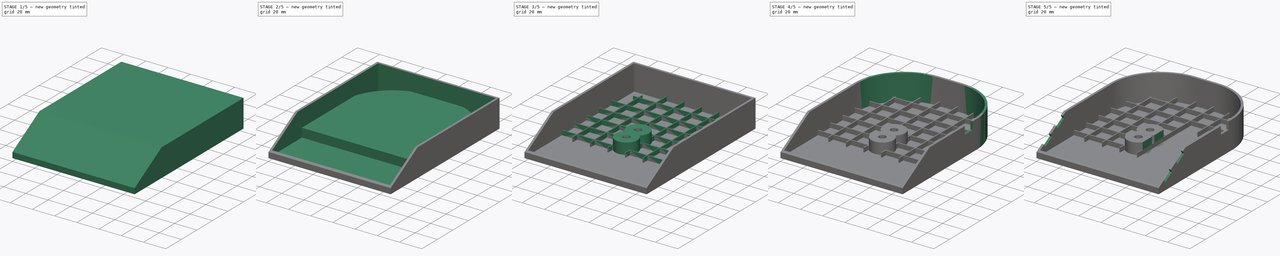
[diagram: build sequence overview — one tinted view per stage of 5, left to right]
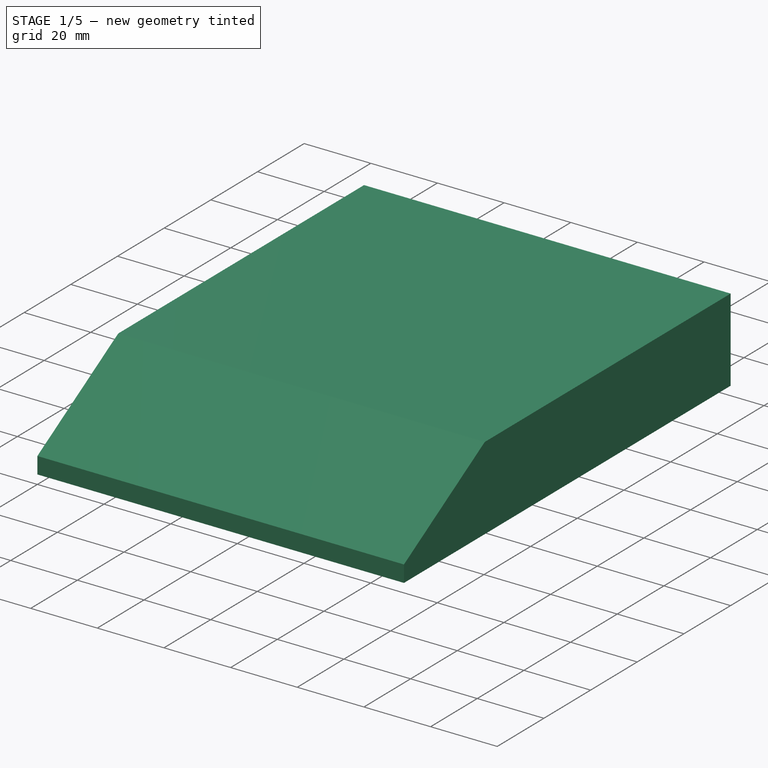
[diagram: stage 1 of 5 — iso view after this stage's code; geometry added in this stage tinted green]
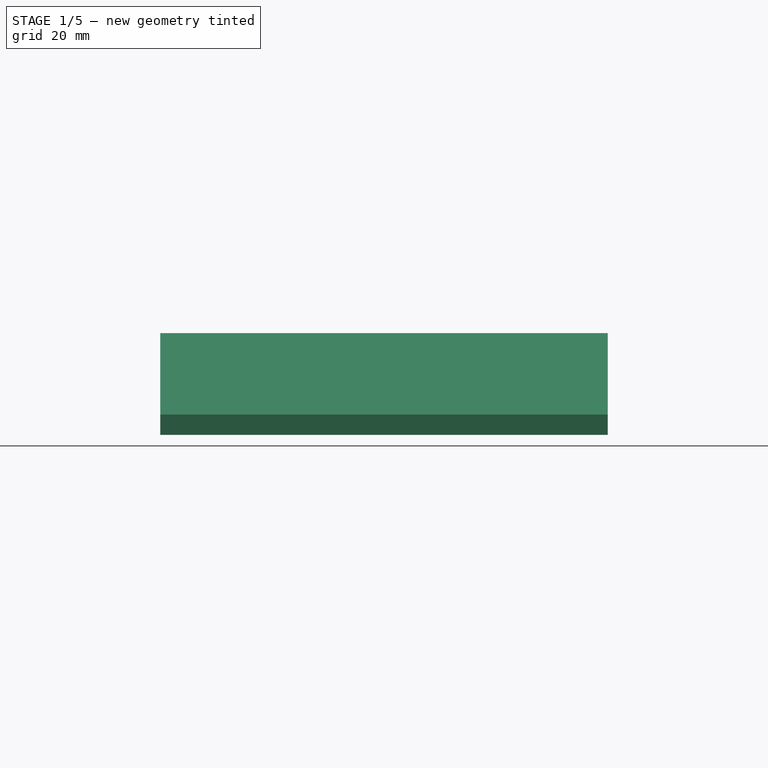
[diagram: stage 1 of 5 — front view after this stage's code; geometry added in this stage tinted green]
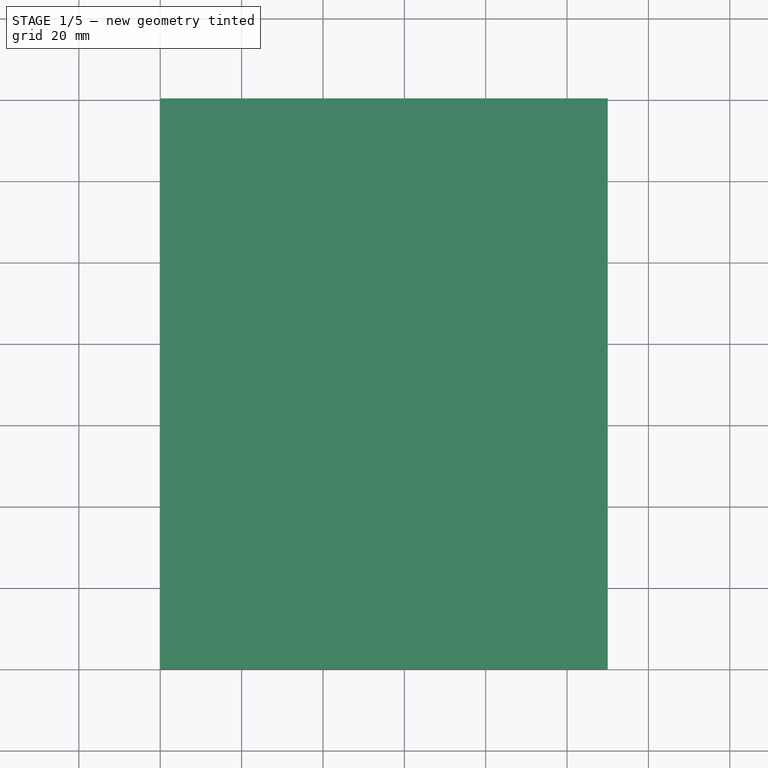
[diagram: stage 1 of 5 — top view after this stage's code; geometry added in this stage tinted green]
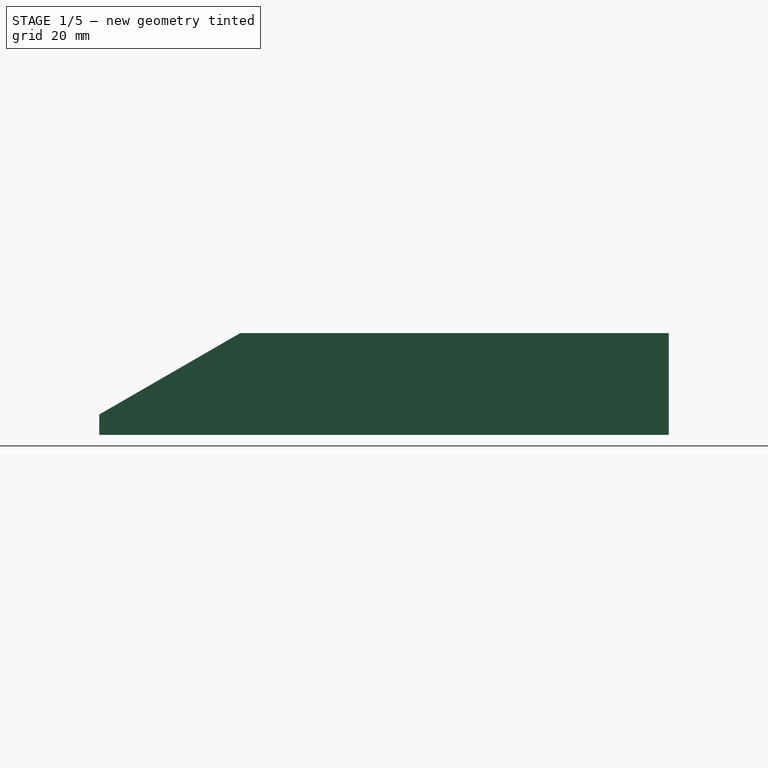
[diagram: stage 1 of 5 — right view after this stage's code; geometry added in this stage tinted green]
FCSTD DOCUMENT  (FreeCAD 0.18R16131 (Git))
Label: Base
License: All rights reserved
LicenseURL: http://en.wikipedia.org/wiki/All_rights_reserved
objects: Sketcher::SketchObject×9, PartDesign::Plane×5, PartDesign::Pocket×5, PartDesign::Pad×4, PartDesign::Fillet×3, PartDesign::Body×3, PartDesign::Boolean×2, Spreadsheet::Sheet×1, PartDesign::FeatureBase×1, PartDesign::Thickness×1, App::Part×1
note: 42 computed .brp shape members not serialized (recipe doc carries the construction recipe); baked Part::Feature solids carry a one-line shape summary decoded from their .brp

FEATURE [Spreadsheet::Sheet] Spreadsheet  label="Parameters"
  cells = A1=Main Body; D1=Arduino Nano; A2=shell; B2(shell)=2; D2=usb_width; E2(nano_usb_width)=10; A3=lenX; B3(lenX)=110; D3=usb_height; E3(nano_usb_height)=6; A4=lenY; B4(lenY)==Parameters.plate_center + 25; D4=usb_upto; E4(nano_usb_upto)=16; A5=lenZ; B5(lenZ)=25; D5=width; E5(nano_width)=18; A6=front_fillet_radius; B6(front_fillet_radius)=3; A7=base_fillet_radius; B7(base_fillet_radius)=45; A9=Screen; A10=height; B10(screen_height)=40; A11=border; B11(screen_border)=7; A12=cutout_width; B12(screen_cutout_width)=72; A13=cutout_height; B13(screen_cutout_height)=25; A14=angle; B14(screen_angle)=30; A15=tab_spacing; B15(screen_tab_spacing)=7; A16=plate_center; B16(plate_center)=115; A17=tab_height; B17(screen_tab_height)=3; A18=tab_width; B18(screen_tab_width)=10; A20=M4 Screw; A21=head_diam; B21(m4_head_diam)=9; A22=head_height; B22(m4_head_height)=4.4; A23=thru_diam; B23(m4_thru_diam)=5; A24=M5 Screw; A25=head_diam; B25(m5_head_diam)=10; A26=head_height; B26(m5_head_height)=5.4; A27=thru_diam; B27(m5_thru_diam)=6.25; A29=TAL220; A30=hole_spacing; B30(TAL220_hole_spacing)=15; A31=standoff_height; B31(TAL220_standoff_height)=10; A32=to_center; B32(TAL220_to_center)=62.5; C32=Measured from first M5 to between the 2 m4s; A34=TAL221; A35=hole_spacing; B35(TAL221_hole_spacing)=6
FEATURE [Sketcher::SketchObject] Sketch  label="Outer Dimensions"
  MapMode = 5
  expr: Constraints[7] = Parameters.lenY
  expr: Constraints[6] = Parameters.lenX
  sketch-geometry (4):
    g0: LineSegment StartX=110 StartY=140 StartZ=0 EndX=110 EndY=0 EndZ=0
    g1: LineSegment StartX=110 StartY=0 StartZ=0 EndX=0 EndY=0 EndZ=0
    g2: LineSegment StartX=0 StartY=0 StartZ=0 EndX=0 EndY=140 EndZ=0
    g3: LineSegment StartX=0 StartY=140 StartZ=0 EndX=110 EndY=140 EndZ=0
  constraints (11):
    c: Coincident(g0,g1)
    c: Coincident(g1,g2)
    c: Horizontal(g1)
    c: Vertical(g0)
    c: Vertical(g2)
    c: Coincident(g-1,g1)
    c: DistanceX(g1,g1) = 110
    c: DistanceY(g1,g2) = 140
    c: Equal(g0,g2)
    c: Coincident(g2,g3)
    c: Coincident(g3,g0)
FEATURE [PartDesign::Pad] Pad
  Length = 25
  Length2 = 100
  Profile = -> Sketch
  Type = 0
  expr: Length = Parameters.lenZ
FEATURE [PartDesign::Plane] DatumPlane
  Length = 24
  MapMode = 5
  Placement = pos=(-2,0,0) rot=(0.57735,-0.57735,-0.57735;2.0944rad)
  ResizeMode = 0
  Width = 24
FEATURE [Sketcher::SketchObject] Sketch001  label="Chamfer"
  MapMode = 5
  Placement = pos=(-2,0,0) rot=(0.57735,-0.57735,-0.57735;2.0944rad)
  Support = -> [DatumPlane]
  expr: Constraints[7] = Parameters.lenZ - Parameters.screen_height * sin(Parameters.screen_angle)
  expr: Constraints[6] = Parameters.screen_height * cos(Parameters.screen_angle)
  expr: Constraints[5] = Parameters.screen_height * sin(Parameters.screen_angle)
  sketch-geometry (3):
    g0: LineSegment StartX=-34.641 StartY=25 StartZ=0 EndX=0 EndY=5 EndZ=0
    g1: LineSegment StartX=0 StartY=5 StartZ=0 EndX=0 EndY=25 EndZ=0
    g2: LineSegment StartX=0 StartY=25 StartZ=0 EndX=-34.641 EndY=25 EndZ=0
  constraints (9):
    c: Coincident(g2,g0)
    c: Coincident(g1,g2)
    c: Coincident(g0,g1)
    c: Vertical(g1)
    c: Horizontal(g2)
    c: DistanceY(g1,g1) = 20
    c: DistanceX(g2,g2) = 34.641
    c: DistanceY(g-1,g0) = 5
    c: Vertical(g0,g-1)
FEATURE [PartDesign::FeatureBase] BaseFeature
  BaseFeature = -> Pad
FEATURE [PartDesign::Pocket] Pocket  label="Screen Chamfer"
  BaseFeature = -> BaseFeature
  Length = 5
  Length2 = 100
  Profile = -> Sketch001
  Type = 1
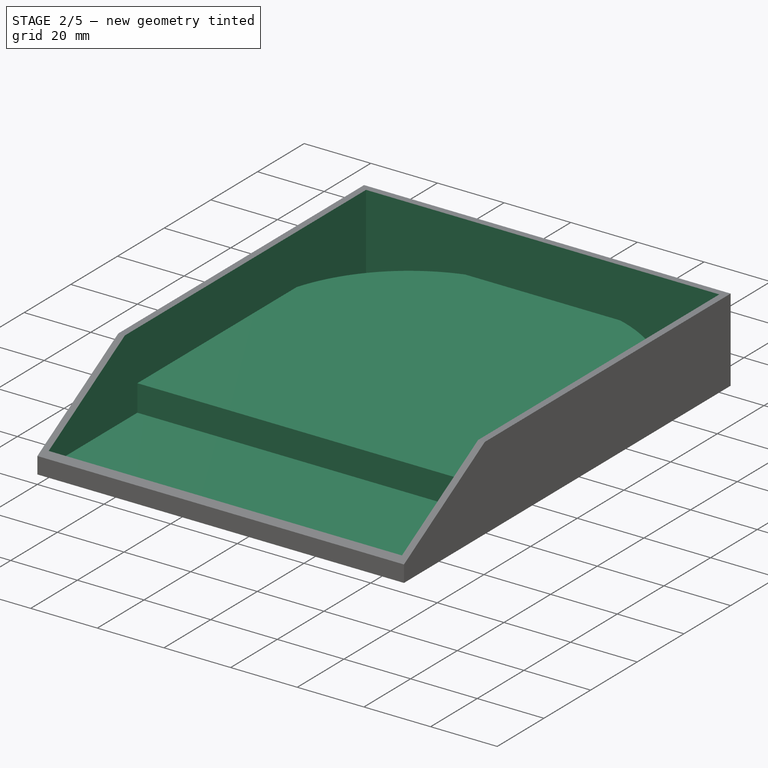
[diagram: stage 2 of 5 — iso view after this stage's code; geometry added in this stage tinted green]
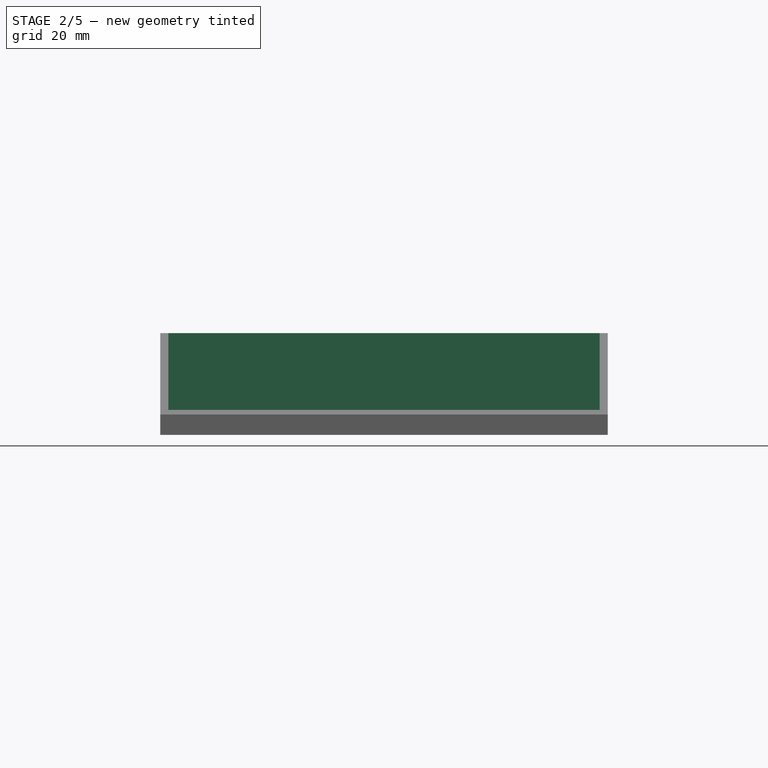
[diagram: stage 2 of 5 — front view after this stage's code; geometry added in this stage tinted green]
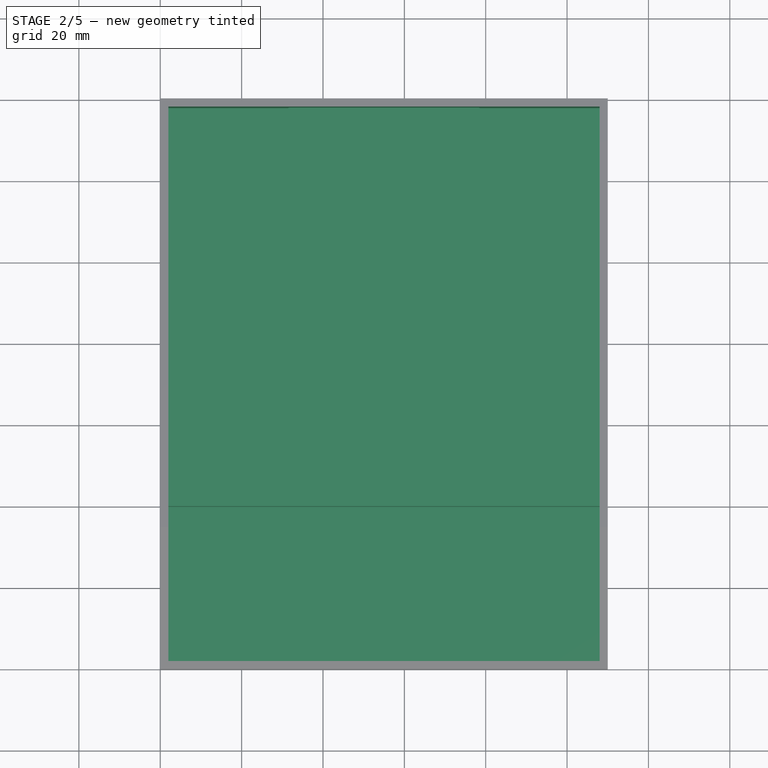
[diagram: stage 2 of 5 — top view after this stage's code; geometry added in this stage tinted green]
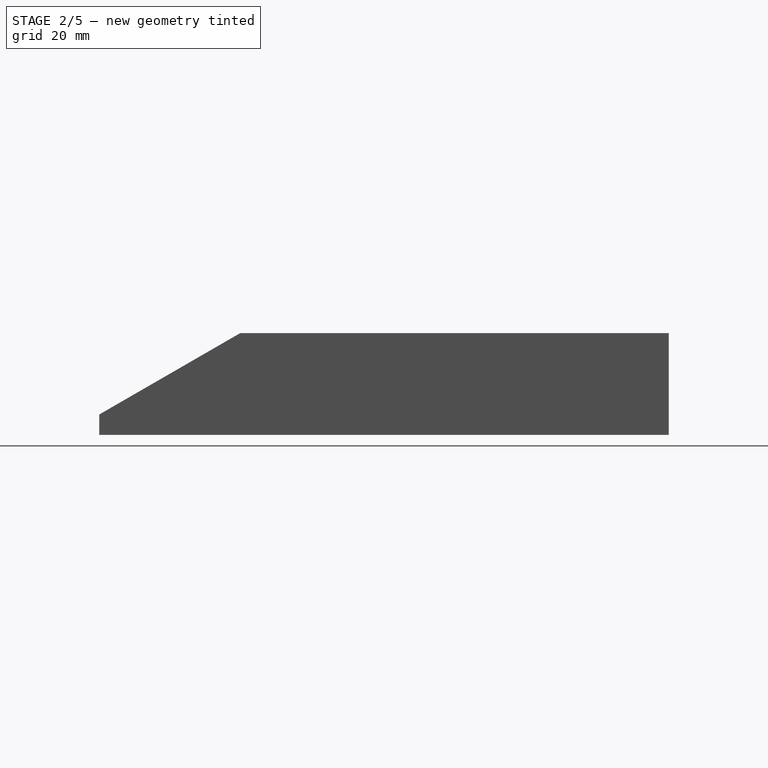
[diagram: stage 2 of 5 — right view after this stage's code; geometry added in this stage tinted green]
FEATURE [PartDesign::Thickness] Thickness  label="Shell"
  Base = -> Pocket [Face5,Face4]
  BaseFeature = -> Pocket
  Join = 1
  Mode = 0
  Reversed = true
  Value = 2
  expr: Value = Parameters.shell
FEATURE [Sketcher::SketchObject] Sketch008
  MapMode = 5
  Support = -> [XY_Plane003]
  expr: Constraints[11] = Parameters.lenY
  expr: Constraints[8] = Parameters.lenX
  sketch-geometry (4):
    g0: LineSegment StartX=0 StartY=140 StartZ=0 EndX=110 EndY=140 EndZ=0
    g1: LineSegment StartX=110 StartY=140 StartZ=0 EndX=110 EndY=40 EndZ=0
    g2: LineSegment StartX=110 StartY=40 StartZ=0 EndX=0 EndY=40 EndZ=0
    g3: LineSegment StartX=0 StartY=40 StartZ=0 EndX=0 EndY=140 EndZ=0
  constraints (12):
    c: Coincident(g0,g1)
    c: Coincident(g1,g2)
    c: Coincident(g2,g3)
    c: Coincident(g3,g0)
    c: Horizontal(g0)
    c: Horizontal(g2)
    c: Vertical(g1)
    c: Vertical(g3)
    c: DistanceX(g2,g2) = 110
    c: DistanceY(g1,g1) = 100
    c: Vertical(g-1,g2)
    c: DistanceY(g-1,g0) = 140
FEATURE [PartDesign::Pad] Pad003
  Length = 10
  Length2 = 100
  Profile = -> Sketch008
  Type = 0
FEATURE [PartDesign::Fillet] Fillet
  Base = -> Pad003 [Edge1,Edge2]
  BaseFeature = -> Pad003
  Radius = 45
  expr: Radius = Parameters.base_fillet_radius
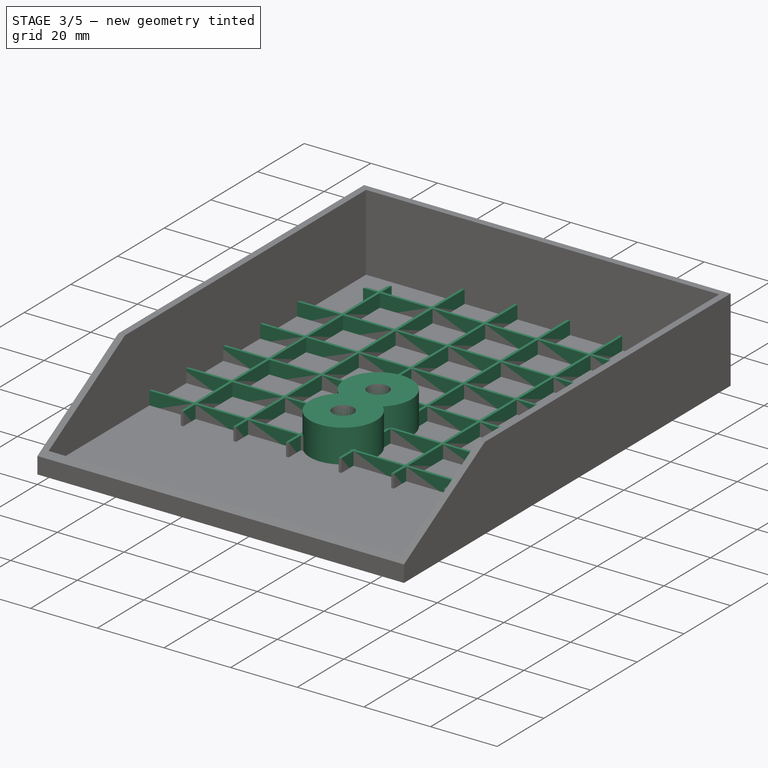
[diagram: stage 3 of 5 — iso view after this stage's code; geometry added in this stage tinted green]
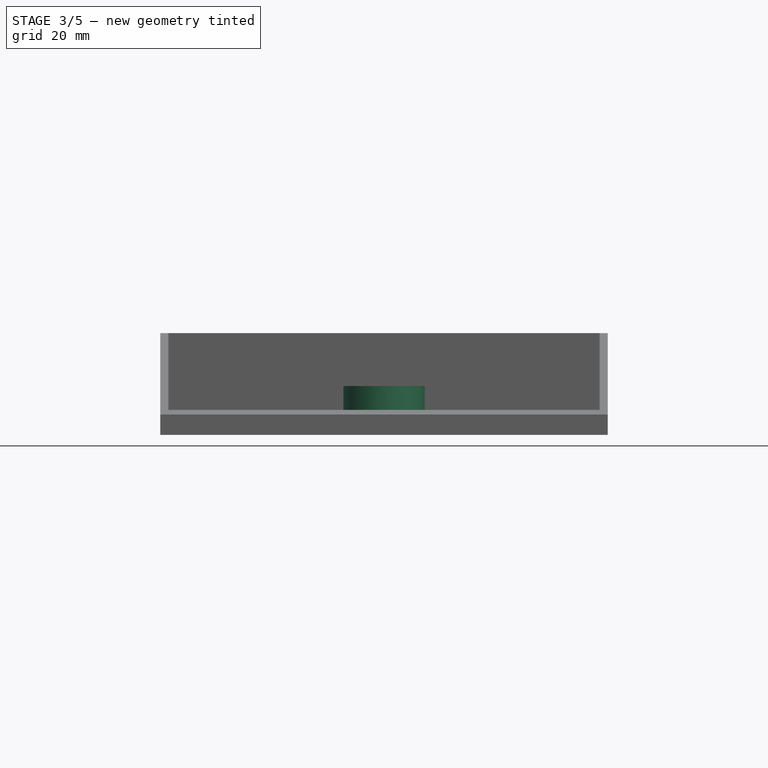
[diagram: stage 3 of 5 — front view after this stage's code; geometry added in this stage tinted green]
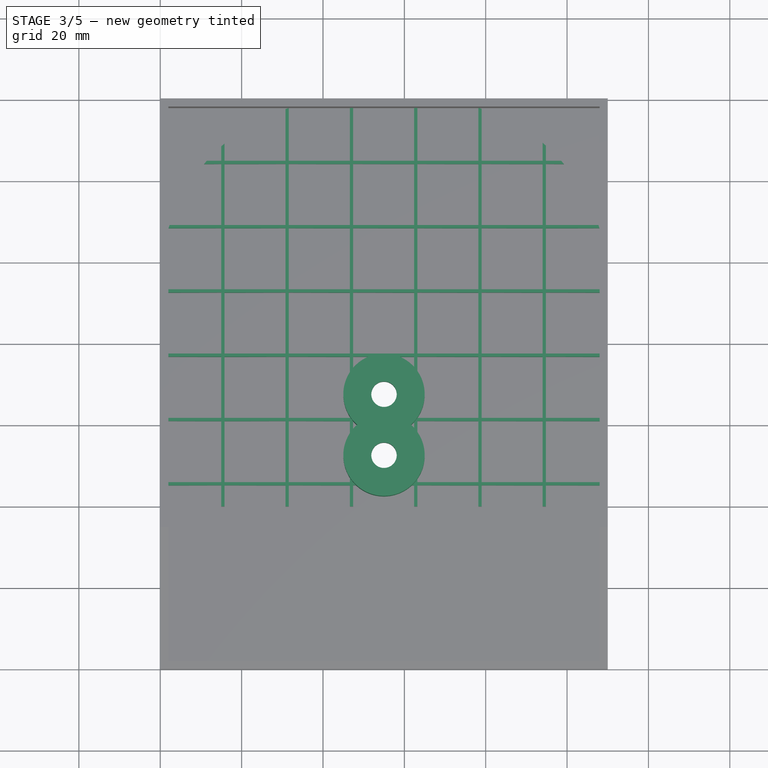
[diagram: stage 3 of 5 — top view after this stage's code; geometry added in this stage tinted green]
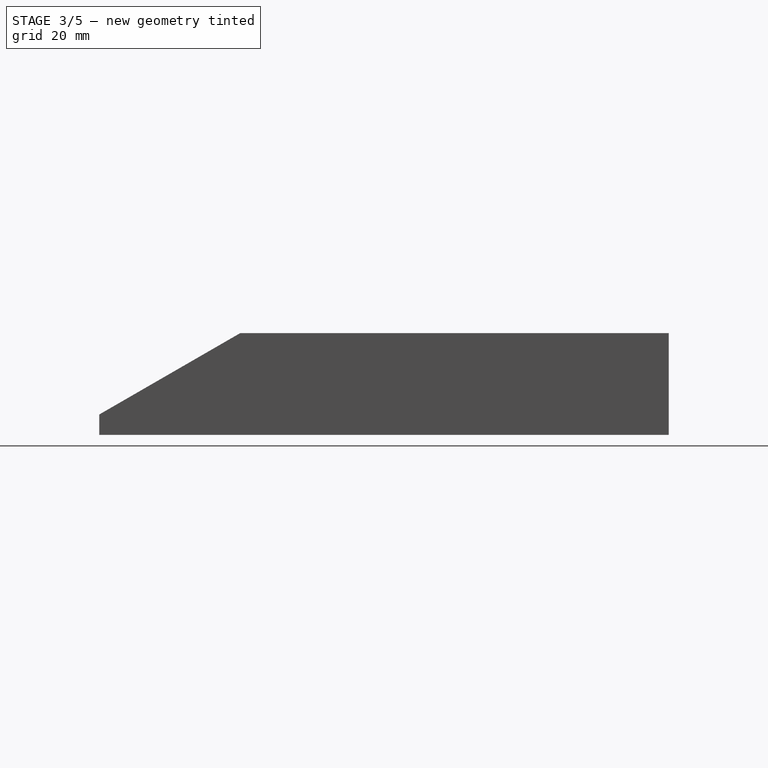
[diagram: stage 3 of 5 — right view after this stage's code; geometry added in this stage tinted green]
FEATURE [PartDesign::Plane] DatumPlane001
  Length = 146.833
  MapMode = 5
  Placement = pos=(0,0,2) rot=(0,0,1;0rad)
  ResizeMode = 0
  Support = -> [Thickness]
  Width = 176.833
FEATURE [Sketcher::SketchObject] Sketch002  label="Bosses"
  MapMode = 5
  Placement = pos=(0,0,2) rot=(0,0,1;0rad)
  Support = -> [DatumPlane001]
  expr: Constraints[11] = Parameters.lenX / 2
  expr: Constraints[7] = Parameters.TAL220_hole_spacing
  expr: Constraints.bossY = Parameters.plate_center - Parameters.TAL220_to_center
  expr: Constraints[1] = Parameters.m5_head_diam * 2
  expr: Constraints[0] = Parameters.m5_thru_diam
  sketch-geometry (4):
    g0: Circle CenterX=55 CenterY=67.5 CenterZ=0 NormalX=0 NormalY=0 NormalZ=1 AngleXU=0 Radius=3.125
    g1: ArcOfCircle CenterX=55 CenterY=67.5 CenterZ=0 NormalX=0 NormalY=0 NormalZ=1 AngleXU=0 Radius=10 StartAngle=5.43512 EndAngle=10.2728
    g2: ArcOfCircle CenterX=55 CenterY=52.5 CenterZ=0 NormalX=0 NormalY=0 NormalZ=1 AngleXU=0 Radius=10 StartAngle=2.29353 EndAngle=7.13125
    g3: Circle CenterX=55 CenterY=52.5 CenterZ=0 NormalX=0 NormalY=0 NormalZ=1 AngleXU=0 Radius=3.125
  constraints (13):
    c: Diameter(g0) = 6.25
    c: Diameter(g1) = 20
    c: Coincident(g0,g1)
    c: Equal(g1,g2)
    c: Equal(g3,g0)
    c: Coincident(g2,g3)
    c: Vertical(g2,g0)
    c: DistanceY(g2,g0) = 15
    c: Coincident(g2,g1)
    c: Coincident(g2,g1)
    c: Coincident(g1,g2)
    c: DistanceX(g-1,g2) = 55
    c: DistanceY(g-1,g2) = 52.5  'bossY'
FEATURE [PartDesign::Pad] Pad001  label="Screw_Bosses"
  BaseFeature = -> Thickness
  Length = 10
  Length2 = 100
  Profile = -> Sketch002
  Type = 0
  expr: Length = Parameters.TAL220_standoff_height
FEATURE [Sketcher::SketchObject] Sketch003  label="sk_thru_hole"
  MapMode = 5
  Placement = pos=(0,0,0) rot=(1,0,0;3.14159rad)
  Support = -> [Pad001]
  expr: Constraints[4] = Parameters.lenX / 2
  expr: Constraints[3] = Parameters.TAL220_hole_spacing
  expr: Constraints[0] = Parameters.m5_head_diam
  sketch-geometry (2):
    g0: Circle CenterX=55 CenterY=-52.5 CenterZ=0 NormalX=0 NormalY=0 NormalZ=1 AngleXU=0 Radius=5
    g1: Circle CenterX=55 CenterY=-67.5 CenterZ=0 NormalX=0 NormalY=0 NormalZ=1 AngleXU=0 Radius=5
  constraints (6):
    c: Diameter(g0) = 10
    c: Equal(g1,g0)
    c: Vertical(g0,g1)
    c: DistanceY(g1,g0) = 15
    c: DistanceX(g-1,g0) = 55
    c: DistanceY(g0,g-1) = 52.5
FEATURE [PartDesign::Pocket] Pocket001  label="Thru Holes"
  BaseFeature = -> Pad001
  Length = 5.4
  Length2 = 100
  Profile = -> Sketch003
  Type = 0
  expr: Length = Parameters.m5_head_height
FEATURE [PartDesign::Plane] DatumPlane004
  Length = 132.961
  MapMode = 5
  Placement = pos=(0,138,0) rot=(1,0,0;1.5708rad)
  ResizeMode = 0
  Support = -> [Pocket003]
  Width = 47.9615
FEATURE [Sketcher::SketchObject] Sketch007
  MapMode = 5
  Support = -> [XY_Plane002]
  expr: Constraints[11] = Parameters.lenY
  sketch-geometry (503):
    g0: LineSegment StartX=0 StartY=140 StartZ=0 EndX=15 EndY=140 EndZ=0
    g1: LineSegment StartX=15 StartY=140 StartZ=0 EndX=15 EndY=125 EndZ=0
    g2: LineSegment StartX=15 StartY=125 StartZ=0 EndX=0 EndY=125 EndZ=0
    g3: LineSegment StartX=0 StartY=125 StartZ=0 EndX=0 EndY=140 EndZ=0
    g4: LineSegment StartX=15.8 StartY=140 StartZ=0 EndX=30.8 EndY=140 EndZ=0
    g5: LineSegment StartX=30.8 StartY=140 StartZ=0 EndX=30.8 EndY=125 EndZ=0
    g6: LineSegment StartX=30.8 StartY=125 StartZ=0 EndX=15.8 EndY=125 EndZ=0
    g7: LineSegment StartX=15.8 StartY=125 StartZ=0 EndX=15.8 EndY=140 EndZ=0
    g8: LineSegment [constr] StartX=0 StartY=140 StartZ=0 EndX=15.8 EndY=140 EndZ=0
    g9: LineSegment StartX=31.6 StartY=140 StartZ=0 EndX=46.6 EndY=140 EndZ=0
    g10: LineSegment StartX=46.6 StartY=140 StartZ=0 EndX=46.6 EndY=125 EndZ=0
    g11: LineSegment StartX=46.6 StartY=125 StartZ=0 EndX=31.6 EndY=125 EndZ=0
    g12: LineSegment StartX=31.6 StartY=125 StartZ=0 EndX=31.6 EndY=140 EndZ=0
    g13: LineSegment [constr] StartX=15.8 StartY=140 StartZ=0 EndX=31.6 EndY=140 EndZ=0
    g14: LineSegment StartX=47.4 StartY=140 StartZ=0 EndX=62.4 EndY=140 EndZ=0
    g15: LineSegment StartX=62.4 StartY=140 StartZ=0 EndX=62.4 EndY=125 EndZ=0
    g16: LineSegment StartX=62.4 StartY=125 StartZ=0 EndX=47.4 EndY=125 EndZ=0
    g17: LineSegment StartX=47.4 StartY=125 StartZ=0 EndX=47.4 EndY=140 EndZ=0
    g18: LineSegment [constr] StartX=31.6 StartY=140 StartZ=0 EndX=47.4 EndY=140 EndZ=0
    g19: LineSegment StartX=63.2 StartY=140 StartZ=0 EndX=78.2 EndY=140 EndZ=0
    g20: LineSegment StartX=78.2 StartY=140 StartZ=0 EndX=78.2 EndY=125 EndZ=0
    g21: LineSegment StartX=78.2 StartY=125 StartZ=0 EndX=63.2 EndY=125 EndZ=0
    g22: LineSegment StartX=63.2 StartY=125 StartZ=0 EndX=63.2 EndY=140 EndZ=0
    g23: LineSegment [constr] StartX=47.4 StartY=140 StartZ=0 EndX=63.2 EndY=140 EndZ=0
    g24: LineSegment StartX=79 StartY=140 StartZ=0 EndX=94 EndY=140 EndZ=0
    g25: LineSegment StartX=94 StartY=140 StartZ=0 EndX=94 EndY=125 EndZ=0
    g26: LineSegment StartX=94 StartY=125 StartZ=0 EndX=79 EndY=125 EndZ=0
    g27: LineSegment StartX=79 StartY=125 StartZ=0 EndX=79 EndY=140 EndZ=0
    g28: LineSegment [constr] StartX=63.2 StartY=140 StartZ=0 EndX=79 EndY=140 EndZ=0
    g29: LineSegment StartX=94.8 StartY=140 StartZ=0 EndX=109.8 EndY=140 EndZ=0
    g30: LineSegment StartX=109.8 StartY=140 StartZ=0 EndX=109.8 EndY=125 EndZ=0
    g31: LineSegment StartX=109.8 StartY=125 StartZ=0 EndX=94.8 EndY=125 EndZ=0
    g32: LineSegment StartX=94.8 StartY=125 StartZ=0 EndX=94.8 EndY=140 EndZ=0
    g33: LineSegment [constr] StartX=79 StartY=140 StartZ=0 EndX=94.8 EndY=140 EndZ=0
    g34: LineSegment StartX=110.6 StartY=140 StartZ=0 EndX=125.6 EndY=140 EndZ=0
    g35: LineSegment StartX=125.6 StartY=140 StartZ=0 EndX=125.6 EndY=125 EndZ=0
    g36: LineSegment StartX=125.6 StartY=125 StartZ=0 EndX=110.6 EndY=125 EndZ=0
    g37: LineSegment StartX=110.6 StartY=125 StartZ=0 EndX=110.6 EndY=140 EndZ=0
    g38: LineSegment [constr] StartX=94.8 StartY=140 StartZ=0 EndX=110.6 EndY=140 EndZ=0
    g39: LineSegment StartX=126.4 StartY=140 StartZ=0 EndX=141.4 EndY=140 EndZ=0
    g40: LineSegment StartX=141.4 StartY=140 StartZ=0 EndX=141.4 EndY=125 EndZ=0
    g41: LineSegment StartX=141.4 StartY=125 StartZ=0 EndX=126.4 EndY=125 EndZ=0
    g42: LineSegment StartX=126.4 StartY=125 StartZ=0 EndX=126.4 EndY=140 EndZ=0
    g43: LineSegment [constr] StartX=110.6 StartY=140 StartZ=0 EndX=126.4 EndY=140 EndZ=0
    g44: LineSegment StartX=142.2 StartY=140 StartZ=0 EndX=157.2 EndY=140 EndZ=0
    g45: LineSegment StartX=157.2 StartY=140 StartZ=0 EndX=157.2 EndY=125 EndZ=0
    g46: LineSegment StartX=157.2 StartY=125 StartZ=0 EndX=142.2 EndY=125 EndZ=0
    g47: LineSegment StartX=142.2 StartY=125 StartZ=0 EndX=142.2 EndY=140 EndZ=0
    g48: LineSegment [constr] StartX=126.4 StartY=140 StartZ=0 EndX=142.2 EndY=140 EndZ=0
    g49: LineSegment StartX=9.716e-13 StartY=124.2 StartZ=0 EndX=15 EndY=124.2 EndZ=0
    g50: LineSegment StartX=15 StartY=124.2 StartZ=0 EndX=15 EndY=109.2 EndZ=0
    g51: LineSegment StartX=15 StartY=109.2 StartZ=0 EndX=9.717e-13 EndY=109.2 EndZ=0
    g52: LineSegment StartX=9.716e-13 StartY=109.2 StartZ=0 EndX=9.716e-13 EndY=124.2 EndZ=0
    g53: LineSegment [constr] StartX=0 StartY=140 StartZ=0 EndX=9.716e-13 EndY=124.2 EndZ=0
    g54: LineSegment StartX=15.8 StartY=124.2 StartZ=0 EndX=30.8 EndY=124.2 EndZ=0
    g55: LineSegment StartX=30.8 StartY=124.2 StartZ=0 EndX=30.8 EndY=109.2 EndZ=0
    g56: LineSegment StartX=30.8 StartY=109.2 StartZ=0 EndX=15.8 EndY=109.2 EndZ=0
    g57: LineSegment StartX=15.8 StartY=109.2 StartZ=0 EndX=15.8 EndY=124.2 EndZ=0
    g58: LineSegment [constr] StartX=9.716e-13 StartY=124.2 StartZ=0 EndX=15.8 EndY=124.2 EndZ=0
    g59: LineSegment StartX=31.6 StartY=124.2 StartZ=0 EndX=46.6 EndY=124.2 EndZ=0
    g60: LineSegment StartX=46.6 StartY=124.2 StartZ=0 EndX=46.6 EndY=109.2 EndZ=0
    g61: LineSegment StartX=46.6 StartY=109.2 StartZ=0 EndX=31.6 EndY=109.2 EndZ=0
    g62: LineSegment StartX=31.6 StartY=109.2 StartZ=0 EndX=31.6 EndY=124.2 EndZ=0
    g63: LineSegment [constr] StartX=15.8 StartY=124.2 StartZ=0 EndX=31.6 EndY=124.2 EndZ=0
    g64: LineSegment StartX=47.4 StartY=124.2 StartZ=0 EndX=62.4 EndY=124.2 EndZ=0
    g65: LineSegment StartX=62.4 StartY=124.2 StartZ=0 EndX=62.4 EndY=109.2 EndZ=0
    g66: LineSegment StartX=62.4 StartY=109.2 StartZ=0 EndX=47.4 EndY=109.2 EndZ=0
    g67: LineSegment StartX=47.4 StartY=109.2 StartZ=0 EndX=47.4 EndY=124.2 EndZ=0
    g68: LineSegment [constr] StartX=31.6 StartY=124.2 StartZ=0 EndX=47.4 EndY=124.2 EndZ=0
    g69: LineSegment StartX=63.2 StartY=124.2 StartZ=0 EndX=78.2 EndY=124.2 EndZ=0
    g70: LineSegment StartX=78.2 StartY=124.2 StartZ=0 EndX=78.2 EndY=109.2 EndZ=0
    g71: LineSegment StartX=78.2 StartY=109.2 StartZ=0 EndX=63.2 EndY=109.2 EndZ=0
    g72: LineSegment StartX=63.2 StartY=109.2 StartZ=0 EndX=63.2 EndY=124.2 EndZ=0
    g73: LineSegment [constr] StartX=47.4 StartY=124.2 StartZ=0 EndX=63.2 EndY=124.2 EndZ=0
    g74: LineSegment StartX=79 StartY=124.2 StartZ=0 EndX=94 EndY=124.2 EndZ=0
    g75: LineSegment StartX=94 StartY=124.2 StartZ=0 EndX=94 EndY=109.2 EndZ=0
    g76: LineSegment StartX=94 StartY=109.2 StartZ=0 EndX=79 EndY=109.2 EndZ=0
    g77: LineSegment StartX=79 StartY=109.2 StartZ=0 EndX=79 EndY=124.2 EndZ=0
    g78: LineSegment [constr] StartX=63.2 StartY=124.2 StartZ=0 EndX=79 EndY=124.2 EndZ=0
    g79: LineSegment StartX=94.8 StartY=124.2 StartZ=0 EndX=109.8 EndY=124.2 EndZ=0
    g80: LineSegment StartX=109.8 StartY=124.2 StartZ=0 EndX=109.8 EndY=109.2 EndZ=0
    g81: LineSegment StartX=109.8 StartY=109.2 StartZ=0 EndX=94.8 EndY=109.2 EndZ=0
    g82: LineSegment StartX=94.8 StartY=109.2 StartZ=0 EndX=94.8 EndY=124.2 EndZ=0
    g83: LineSegment [constr] StartX=79 StartY=124.2 StartZ=0 EndX=94.8 EndY=124.2 EndZ=0
    g84: LineSegment StartX=110.6 StartY=124.2 StartZ=0 EndX=125.6 EndY=124.2 EndZ=0
    g85: LineSegment StartX=125.6 StartY=124.2 StartZ=0 EndX=125.6 EndY=109.2 EndZ=0
    g86: LineSegment StartX=125.6 StartY=109.2 StartZ=0 EndX=110.6 EndY=109.2 EndZ=0
    g87: LineSegment StartX=110.6 StartY=109.2 StartZ=0 EndX=110.6 EndY=124.2 EndZ=0
    g88: LineSegment [constr] StartX=94.8 StartY=124.2 StartZ=0 EndX=110.6 EndY=124.2 EndZ=0
    g89: LineSegment StartX=126.4 StartY=124.2 StartZ=0 EndX=141.4 EndY=124.2 EndZ=0
    g90: LineSegment StartX=141.4 StartY=124.2 StartZ=0 EndX=141.4 EndY=109.2 EndZ=0
    g91: LineSegment StartX=141.4 StartY=109.2 StartZ=0 EndX=126.4 EndY=109.2 EndZ=0
    g92: LineSegment StartX=126.4 StartY=109.2 StartZ=0 EndX=126.4 EndY=124.2 EndZ=0
    g93: LineSegment [constr] StartX=110.6 StartY=124.2 StartZ=0 EndX=126.4 EndY=124.2 EndZ=0
    g94: LineSegment StartX=142.2 StartY=124.2 StartZ=0 EndX=157.2 EndY=124.2 EndZ=0
    g95: LineSegment StartX=157.2 StartY=124.2 StartZ=0 EndX=157.2 EndY=109.2 EndZ=0
    g96: LineSegment StartX=157.2 StartY=109.2 StartZ=0 EndX=142.2 EndY=109.2 EndZ=0
    g97: LineSegment StartX=142.2 StartY=109.2 StartZ=0 EndX=142.2 EndY=124.2 EndZ=0
    g98: LineSegment [constr] StartX=126.4 StartY=124.2 StartZ=0 EndX=142.2 EndY=124.2 EndZ=0
    g99: LineSegment StartX=8.0309e-12 StartY=108.4 StartZ=0 EndX=15 EndY=108.4 EndZ=0
    g100: LineSegment StartX=15 StartY=108.4 StartZ=0 EndX=15 EndY=93.4 EndZ=0
    g101: LineSegment StartX=15 StartY=93.4 StartZ=0 EndX=8.0309e-12 EndY=93.4 EndZ=0
    g102: LineSegment StartX=8.0309e-12 StartY=93.4 StartZ=0 EndX=8.0309e-12 EndY=108.4 EndZ=0
    g103: LineSegment [constr] StartX=9.716e-13 StartY=124.2 StartZ=0 EndX=8.0309e-12 EndY=108.4 EndZ=0
    g104: LineSegment StartX=15.8 StartY=108.4 StartZ=0 EndX=30.8 EndY=108.4 EndZ=0
    g105: LineSegment StartX=30.8 StartY=108.4 StartZ=0 EndX=30.8 EndY=93.4 EndZ=0
    g106: LineSegment StartX=30.8 StartY=93.4 StartZ=0 EndX=15.8 EndY=93.4 EndZ=0
    g107: LineSegment StartX=15.8 StartY=93.4 StartZ=0 EndX=15.8 EndY=108.4 EndZ=0
    g108: LineSegment [constr] StartX=8.0309e-12 StartY=108.4 StartZ=0 EndX=15.8 EndY=108.4 EndZ=0
    g109: LineSegment StartX=31.6 StartY=108.4 StartZ=0 EndX=46.6 EndY=108.4 EndZ=0
    g110: LineSegment StartX=46.6 StartY=108.4 StartZ=0 EndX=46.6 EndY=93.4 EndZ=0
    g111: LineSegment StartX=46.6 StartY=93.4 StartZ=0 EndX=31.6 EndY=93.4 EndZ=0
    g112: LineSegment StartX=31.6 StartY=93.4 StartZ=0 EndX=31.6 EndY=108.4 EndZ=0
    g113: LineSegment [constr] StartX=15.8 StartY=108.4 StartZ=0 EndX=31.6 EndY=108.4 EndZ=0
    g114: LineSegment StartX=47.4 StartY=108.4 StartZ=0 EndX=62.4 EndY=108.4 EndZ=0
    g115: LineSegment StartX=62.4 StartY=108.4 StartZ=0 EndX=62.4 EndY=93.4 EndZ=0
    g116: LineSegment StartX=62.4 StartY=93.4 StartZ=0 EndX=47.4 EndY=93.4 EndZ=0
    g117: LineSegment StartX=47.4 StartY=93.4 StartZ=0 EndX=47.4 EndY=108.4 EndZ=0
    g118: LineSegment [constr] StartX=31.6 StartY=108.4 StartZ=0 EndX=47.4 EndY=108.4 EndZ=0
    g119: LineSegment StartX=63.2 StartY=108.4 StartZ=0 EndX=78.2 EndY=108.4 EndZ=0
    g120: LineSegment StartX=78.2 StartY=108.4 StartZ=0 EndX=78.2 EndY=93.4 EndZ=0
    g121: LineSegment StartX=78.2 StartY=93.4 StartZ=0 EndX=63.2 EndY=93.4 EndZ=0
    g122: LineSegment StartX=63.2 StartY=93.4 StartZ=0 EndX=63.2 EndY=108.4 EndZ=0
    g123: LineSegment [constr] StartX=47.4 StartY=108.4 StartZ=0 EndX=63.2 EndY=108.4 EndZ=0
    g124: LineSegment StartX=79 StartY=108.4 StartZ=0 EndX=94 EndY=108.4 EndZ=0
    g125: LineSegment StartX=94 StartY=108.4 StartZ=0 EndX=94 EndY=93.4 EndZ=0
    g126: LineSegment StartX=94 StartY=93.4 StartZ=0 EndX=79 EndY=93.4 EndZ=0
    g127: LineSegment StartX=79 StartY=93.4 StartZ=0 EndX=79 EndY=108.4 EndZ=0
    g128: LineSegment [constr] StartX=63.2 StartY=108.4 StartZ=0 EndX=79 EndY=108.4 EndZ=0
    g129: LineSegment StartX=94.8 StartY=108.4 StartZ=0 EndX=109.8 EndY=108.4 EndZ=0
    g130: LineSegment StartX=109.8 StartY=108.4 StartZ=0 EndX=109.8 EndY=93.4 EndZ=0
    g131: LineSegment StartX=109.8 StartY=93.4 StartZ=0 EndX=94.8 EndY=93.4 EndZ=0
    g132: LineSegment StartX=94.8 StartY=93.4 StartZ=0 EndX=94.8 EndY=108.4 EndZ=0
    g133: LineSegment [constr] StartX=79 StartY=108.4 StartZ=0 EndX=94.8 EndY=108.4 EndZ=0
    g134: LineSegment StartX=110.6 StartY=108.4 StartZ=0 EndX=125.6 EndY=108.4 EndZ=0
    g135: LineSegment StartX=125.6 StartY=108.4 StartZ=0 EndX=125.6 EndY=93.4 EndZ=0
    g136: LineSegment StartX=125.6 StartY=93.4 StartZ=0 EndX=110.6 EndY=93.4 EndZ=0
    g137: LineSegment StartX=110.6 StartY=93.4 StartZ=0 EndX=110.6 EndY=108.4 EndZ=0
    g138: LineSegment [constr] StartX=94.8 StartY=108.4 StartZ=0 EndX=110.6 EndY=108.4 EndZ=0
    g139: LineSegment StartX=126.4 StartY=108.4 StartZ=0 EndX=141.4 EndY=108.4 EndZ=0
    g140: LineSegment StartX=141.4 StartY=108.4 StartZ=0 EndX=141.4 EndY=93.4 EndZ=0
    g141: LineSegment StartX=141.4 StartY=93.4 StartZ=0 EndX=126.4 EndY=93.4 EndZ=0
    g142: LineSegment StartX=126.4 StartY=93.4 StartZ=0 EndX=126.4 EndY=108.4 EndZ=0
    g143: LineSegment [constr] StartX=110.6 StartY=108.4 StartZ=0 EndX=126.4 EndY=108.4 EndZ=0
    g144: LineSegment StartX=142.2 StartY=108.4 StartZ=0 EndX=157.2 EndY=108.4 EndZ=0
    g145: LineSegment StartX=157.2 StartY=108.4 StartZ=0 EndX=157.2 EndY=93.4 EndZ=0
    g146: LineSegment StartX=157.2 StartY=93.4 StartZ=0 EndX=142.2 EndY=93.4 EndZ=0
    g147: LineSegment StartX=142.2 StartY=93.4 StartZ=0 EndX=142.2 EndY=108.4 EndZ=0
    g148: LineSegment [constr] StartX=126.4 StartY=108.4 StartZ=0 EndX=142.2 EndY=108.4 EndZ=0
    g149: LineSegment StartX=8.6793e-12 StartY=92.6 StartZ=0 EndX=15 EndY=92.6 EndZ=0
    g150: LineSegment StartX=15 StartY=92.6 StartZ=0 EndX=15 EndY=77.6 EndZ=0
    g151: LineSegment StartX=15 StartY=77.6 StartZ=0 EndX=8.6793e-12 EndY=77.6 EndZ=0
    g152: LineSegment StartX=8.6793e-12 StartY=77.6 StartZ=0 EndX=8.6793e-12 EndY=92.6 EndZ=0
    g153: LineSegment [constr] StartX=8.0309e-12 StartY=108.4 StartZ=0 EndX=8.6793e-12 EndY=92.6 EndZ=0
    g154: LineSegment StartX=15.8 StartY=92.6 StartZ=0 EndX=30.8 EndY=92.6 EndZ=0
    g155: LineSegment StartX=30.8 StartY=92.6 StartZ=0 EndX=30.8 EndY=77.6 EndZ=0
    g156: LineSegment StartX=30.8 StartY=77.6 StartZ=0 EndX=15.8 EndY=77.6 EndZ=0
    g157: LineSegment StartX=15.8 StartY=77.6 StartZ=0 EndX=15.8 EndY=92.6 EndZ=0
    g158: LineSegment [constr] StartX=8.6793e-12 StartY=92.6 StartZ=0 EndX=15.8 EndY=92.6 EndZ=0
    g159: LineSegment StartX=31.6 StartY=92.6 StartZ=0 EndX=46.6 EndY=92.6 EndZ=0
    g160: LineSegment StartX=46.6 StartY=92.6 StartZ=0 EndX=46.6 EndY=77.6 EndZ=0
    g161: LineSegment StartX=46.6 StartY=77.6 StartZ=0 EndX=31.6 EndY=77.6 EndZ=0
    g162: LineSegment StartX=31.6 StartY=77.6 StartZ=0 EndX=31.6 EndY=92.6 EndZ=0
    g163: LineSegment [constr] StartX=15.8 StartY=92.6 StartZ=0 EndX=31.6 EndY=92.6 EndZ=0
    g164: LineSegment StartX=47.4 StartY=92.6 StartZ=0 EndX=62.4 EndY=92.6 EndZ=0
    g165: LineSegment StartX=62.4 StartY=92.6 StartZ=0 EndX=62.4 EndY=77.6 EndZ=0
    g166: LineSegment StartX=62.4 StartY=77.6 StartZ=0 EndX=47.4 EndY=77.6 EndZ=0
    g167: LineSegment StartX=47.4 StartY=77.6 StartZ=0 EndX=47.4 EndY=92.6 EndZ=0
    g168: LineSegment [constr] StartX=31.6 StartY=92.6 StartZ=0 EndX=47.4 EndY=92.6 EndZ=0
    g169: LineSegment StartX=63.2 StartY=92.6 StartZ=0 EndX=78.2 EndY=92.6 EndZ=0
    g170: LineSegment StartX=78.2 StartY=92.6 StartZ=0 EndX=78.2 EndY=77.6 EndZ=0
    g171: LineSegment StartX=78.2 StartY=77.6 StartZ=0 EndX=63.2 EndY=77.6 EndZ=0
    g172: LineSegment StartX=63.2 StartY=77.6 StartZ=0 EndX=63.2 EndY=92.6 EndZ=0
    g173: LineSegment [constr] StartX=47.4 StartY=92.6 StartZ=0 EndX=63.2 EndY=92.6 EndZ=0
    g174: LineSegment StartX=79 StartY=92.6 StartZ=0 EndX=94 EndY=92.6 EndZ=0
    g175: LineSegment StartX=94 StartY=92.6 StartZ=0 EndX=94 EndY=77.6 EndZ=0
    g176: LineSegment StartX=94 StartY=77.6 StartZ=0 EndX=79 EndY=77.6 EndZ=0
    g177: LineSegment StartX=79 StartY=77.6 StartZ=0 EndX=79 EndY=92.6 EndZ=0
    g178: LineSegment [constr] StartX=63.2 StartY=92.6 StartZ=0 EndX=79 EndY=92.6 EndZ=0
    g179: LineSegment StartX=94.8 StartY=92.6 StartZ=0 EndX=109.8 EndY=92.6 EndZ=0
    g180: LineSegment StartX=109.8 StartY=92.6 StartZ=0 EndX=109.8 EndY=77.6 EndZ=0
    g181: LineSegment StartX=109.8 StartY=77.6 StartZ=0 EndX=94.8 EndY=77.6 EndZ=0
    g182: LineSegment StartX=94.8 StartY=77.6 StartZ=0 EndX=94.8 EndY=92.6 EndZ=0
    g183: LineSegment [constr] StartX=79 StartY=92.6 StartZ=0 EndX=94.8 EndY=92.6 EndZ=0
    g184: LineSegment StartX=110.6 StartY=92.6 StartZ=0 EndX=125.6 EndY=92.6 EndZ=0
    g185: LineSegment StartX=125.6 StartY=92.6 StartZ=0 EndX=125.6 EndY=77.6 EndZ=0
    g186: LineSegment StartX=125.6 StartY=77.6 StartZ=0 EndX=110.6 EndY=77.6 EndZ=0
    g187: LineSegment StartX=110.6 StartY=77.6 StartZ=0 EndX=110.6 EndY=92.6 EndZ=0
    g188: LineSegment [constr] StartX=94.8 StartY=92.6 StartZ=0 EndX=110.6 EndY=92.6 EndZ=0
    g189: LineSegment StartX=126.4 StartY=92.6 StartZ=0 EndX=141.4 EndY=92.6 EndZ=0
    g190: LineSegment StartX=141.4 StartY=92.6 StartZ=0 EndX=141.4 EndY=77.6 EndZ=0
    g191: LineSegment StartX=141.4 StartY=77.6 StartZ=0 EndX=126.4 EndY=77.6 EndZ=0
    g192: LineSegment StartX=126.4 StartY=77.6 StartZ=0 EndX=126.4 EndY=92.6 EndZ=0
    g193: LineSegment [constr] StartX=110.6 StartY=92.6 StartZ=0 EndX=126.4 EndY=92.6 EndZ=0
    g194: LineSegment StartX=142.2 StartY=92.6 StartZ=0 EndX=157.2 EndY=92.6 EndZ=0
    g195: LineSegment StartX=157.2 StartY=92.6 StartZ=0 EndX=157.2 EndY=77.6 EndZ=0
    g196: LineSegment StartX=157.2 StartY=77.6 StartZ=0 EndX=142.2 EndY=77.6 EndZ=0
    g197: LineSegment StartX=142.2 StartY=77.6 StartZ=0 EndX=142.2 EndY=92.6 EndZ=0
    g198: LineSegment [constr] StartX=126.4 StartY=92.6 StartZ=0 EndX=142.2 EndY=92.6 EndZ=0
    g199: LineSegment StartX=9.2181e-12 StartY=76.8 StartZ=0 EndX=15 EndY=76.8 EndZ=0
    g200: LineSegment StartX=15 StartY=76.8 StartZ=0 EndX=15 EndY=61.8 EndZ=0
    g201: LineSegment StartX=15 StartY=61.8 StartZ=0 EndX=9.2175e-12 EndY=61.8 EndZ=0
    g202: LineSegment StartX=9.2181e-12 StartY=61.8 StartZ=0 EndX=9.2181e-12 EndY=76.8 EndZ=0
    g203: LineSegment [constr] StartX=8.6793e-12 StartY=92.6 StartZ=0 EndX=9.2181e-12 EndY=76.8 EndZ=0
    g204: LineSegment StartX=15.8 StartY=76.8 StartZ=0 EndX=30.8 EndY=76.8 EndZ=0
    g205: LineSegment StartX=30.8 StartY=76.8 StartZ=0 EndX=30.8 EndY=61.8 EndZ=0
    g206: LineSegment StartX=30.8 StartY=61.8 StartZ=0 EndX=15.8 EndY=61.8 EndZ=0
    g207: LineSegment StartX=15.8 StartY=61.8 StartZ=0 EndX=15.8 EndY=76.8 EndZ=0
    g208: LineSegment [constr] StartX=9.2181e-12 StartY=76.8 StartZ=0 EndX=15.8 EndY=76.8 EndZ=0
    g209: LineSegment StartX=31.6 StartY=76.8 StartZ=0 EndX=46.6 EndY=76.8 EndZ=0
    g210: LineSegment StartX=46.6 StartY=76.8 StartZ=0 EndX=46.6 EndY=61.8 EndZ=0
    g211: LineSegment StartX=46.6 StartY=61.8 StartZ=0 EndX=31.6 EndY=61.8 EndZ=0
    g212: LineSegment StartX=31.6 StartY=61.8 StartZ=0 EndX=31.6 EndY=76.8 EndZ=0
    g213: LineSegment [constr] StartX=15.8 StartY=76.8 StartZ=0 EndX=31.6 EndY=76.8 EndZ=0
    g214: LineSegment StartX=47.4 StartY=76.8 StartZ=0 EndX=62.4 EndY=76.8 EndZ=0
    g215: LineSegment StartX=62.4 StartY=76.8 StartZ=0 EndX=62.4 EndY=61.8 EndZ=0
    g216: LineSegment StartX=62.4 StartY=61.8 StartZ=0 EndX=47.4 EndY=61.8 EndZ=0
    g217: LineSegment StartX=47.4 StartY=61.8 StartZ=0 EndX=47.4 EndY=76.8 EndZ=0
    g218: LineSegment [constr] StartX=31.6 StartY=76.8 StartZ=0 EndX=47.4 EndY=76.8 EndZ=0
    g219: LineSegment StartX=63.2 StartY=76.8 StartZ=0 EndX=78.2 EndY=76.8 EndZ=0
    g220: LineSegment StartX=78.2 StartY=76.8 StartZ=0 EndX=78.2 EndY=61.8 EndZ=0
    g221: LineSegment StartX=78.2 StartY=61.8 StartZ=0 EndX=63.2 EndY=61.8 EndZ=0
    g222: LineSegment StartX=63.2 StartY=61.8 StartZ=0 EndX=63.2 EndY=76.8 EndZ=0
    g223: LineSegment [constr] StartX=47.4 StartY=76.8 StartZ=0 EndX=63.2 EndY=76.8 EndZ=0
    g224: LineSegment StartX=79 StartY=76.8 StartZ=0 EndX=94 EndY=76.8 EndZ=0
    g225: LineSegment StartX=94 StartY=76.8 StartZ=0 EndX=94 EndY=61.8 EndZ=0
    g226: LineSegment StartX=94 StartY=61.8 StartZ=0 EndX=79 EndY=61.8 EndZ=0
    g227: LineSegment StartX=79 StartY=61.8 StartZ=0 EndX=79 EndY=76.8 EndZ=0
    g228: LineSegment [constr] StartX=63.2 StartY=76.8 StartZ=0 EndX=79 EndY=76.8 EndZ=0
    g229: LineSegment StartX=94.8 StartY=76.8 StartZ=0 EndX=109.8 EndY=76.8 EndZ=0
    g230: LineSegment StartX=109.8 StartY=76.8 StartZ=0 EndX=109.8 EndY=61.8 EndZ=0
    g231: LineSegment StartX=109.8 StartY=61.8 StartZ=0 EndX=94.8 EndY=61.8 EndZ=0
    g232: LineSegment StartX=94.8 StartY=61.8 StartZ=0 EndX=94.8 EndY=76.8 EndZ=0
    g233: LineSegment [constr] StartX=79 StartY=76.8 StartZ=0 EndX=94.8 EndY=76.8 EndZ=0
    g234: LineSegment StartX=110.6 StartY=76.8 StartZ=0 EndX=125.6 EndY=76.8 EndZ=0
    g235: LineSegment StartX=125.6 StartY=76.8 StartZ=0 EndX=125.6 EndY=61.8 EndZ=0
    g236: LineSegment StartX=125.6 StartY=61.8 StartZ=0 EndX=110.6 EndY=61.8 EndZ=0
    g237: LineSegment StartX=110.6 StartY=61.8 StartZ=0 EndX=110.6 EndY=76.8 EndZ=0
    g238: LineSegment [constr] StartX=94.8 StartY=76.8 StartZ=0 EndX=110.6 EndY=76.8 EndZ=0
    g239: LineSegment StartX=126.4 StartY=76.8 StartZ=0 EndX=141.4 EndY=76.8 EndZ=0
    g240: LineSegment StartX=141.4 StartY=76.8 StartZ=0 EndX=141.4 EndY=61.8 EndZ=0
    g241: LineSegment StartX=141.4 StartY=61.8 StartZ=0 EndX=126.4 EndY=61.8 EndZ=0
    g242: LineSegment StartX=126.4 StartY=61.8 StartZ=0 EndX=126.4 EndY=76.8 EndZ=0
    g243: LineSegment [constr] StartX=110.6 StartY=76.8 StartZ=0 EndX=126.4 EndY=76.8 EndZ=0
    g244: LineSegment StartX=142.2 StartY=76.8 StartZ=0 EndX=157.2 EndY=76.8 EndZ=0
    g245: LineSegment StartX=157.2 StartY=76.8 StartZ=0 EndX=157.2 EndY=61.8 EndZ=0
    g246: LineSegment StartX=157.2 StartY=61.8 StartZ=0 EndX=142.2 EndY=61.8 EndZ=0
    g247: LineSegment StartX=142.2 StartY=61.8 StartZ=0 EndX=142.2 EndY=76.8 EndZ=0
    g248: LineSegment [constr] StartX=126.4 StartY=76.8 StartZ=0 EndX=142.2 EndY=76.8 EndZ=0
    g249: LineSegment StartX=9.7558e-12 StartY=61 StartZ=0 EndX=15 EndY=61 EndZ=0
    g250: LineSegment StartX=15 StartY=61 StartZ=0 EndX=15 EndY=46 EndZ=0
    g251: LineSegment StartX=15 StartY=46 StartZ=0 EndX=9.7558e-12 EndY=46 EndZ=0
    g252: LineSegment StartX=9.7558e-12 StartY=46 StartZ=0 EndX=9.7558e-12 EndY=61 EndZ=0
    g253: LineSegment [constr] StartX=9.2181e-12 StartY=76.8 StartZ=0 EndX=9.7558e-12 EndY=61 EndZ=0
    g254: LineSegment StartX=15.8 StartY=61 StartZ=0 EndX=30.8 EndY=61 EndZ=0
    g255: LineSegment StartX=30.8 StartY=61 StartZ=0 EndX=30.8 EndY=46 EndZ=0
    g256: LineSegment StartX=30.8 StartY=46 StartZ=0 EndX=15.8 EndY=46 EndZ=0
    g257: LineSegment StartX=15.8 StartY=46 StartZ=0 EndX=15.8 EndY=61 EndZ=0
    g258: LineSegment [constr] StartX=9.7558e-12 StartY=61 StartZ=0 EndX=15.8 EndY=61 EndZ=0
    g259: LineSegment StartX=31.6 StartY=61 StartZ=0 EndX=46.6 EndY=61 EndZ=0
    g260: LineSegment StartX=46.6 StartY=61 StartZ=0 EndX=46.6 EndY=46 EndZ=0
    g261: LineSegment StartX=46.6 StartY=46 StartZ=0 EndX=31.6 EndY=46 EndZ=0
    g262: LineSegment StartX=31.6 StartY=46 StartZ=0 EndX=31.6 EndY=61 EndZ=0
    g263: LineSegment [constr] StartX=15.8 StartY=61 StartZ=0 EndX=31.6 EndY=61 EndZ=0
    g264: LineSegment StartX=47.4 StartY=61 StartZ=0 EndX=62.4 EndY=61 EndZ=0
    g265: LineSegment StartX=62.4 StartY=61 StartZ=0 EndX=62.4 EndY=46 EndZ=0
    g266: LineSegment StartX=62.4 StartY=46 StartZ=0 EndX=47.4 EndY=46 EndZ=0
    g267: LineSegment StartX=47.4 StartY=46 StartZ=0 EndX=47.4 EndY=61 EndZ=0
    g268: LineSegment [constr] StartX=31.6 StartY=61 StartZ=0 EndX=47.4 EndY=61 EndZ=0
    g269: LineSegment StartX=63.2 StartY=61 StartZ=0 EndX=78.2 EndY=61 EndZ=0
    g270: LineSegment StartX=78.2 StartY=61 StartZ=0 EndX=78.2 EndY=46 EndZ=0
    g271: LineSegment StartX=78.2 StartY=46 StartZ=0 EndX=63.2 EndY=46 EndZ=0
    g272: LineSegment StartX=63.2 StartY=46 StartZ=0 EndX=63.2 EndY=61 EndZ=0
    g273: LineSegment [constr] StartX=47.4 StartY=61 StartZ=0 EndX=63.2 EndY=61 EndZ=0
    g274: LineSegment StartX=79 StartY=61 StartZ=0 EndX=94 EndY=61 EndZ=0
    g275: LineSegment StartX=94 StartY=61 StartZ=0 EndX=94 EndY=46 EndZ=0
    g276: LineSegment StartX=94 StartY=46 StartZ=0 EndX=79 EndY=46 EndZ=0
    g277: LineSegment StartX=79 StartY=46 StartZ=0 EndX=79 EndY=61 EndZ=0
    g278: LineSegment [constr] StartX=63.2 StartY=61 StartZ=0 EndX=79 EndY=61 EndZ=0
    g279: LineSegment StartX=94.8 StartY=61 StartZ=0 EndX=109.8 EndY=61 EndZ=0
    g280: LineSegment StartX=109.8 StartY=61 StartZ=0 EndX=109.8 EndY=46 EndZ=0
    g281: LineSegment StartX=109.8 StartY=46 StartZ=0 EndX=94.8 EndY=46 EndZ=0
    g282: LineSegment StartX=94.8 StartY=46 StartZ=0 EndX=94.8 EndY=61 EndZ=0
    g283: LineSegment [constr] StartX=79 StartY=61 StartZ=0 EndX=94.8 EndY=61 EndZ=0
    g284: LineSegment StartX=110.6 StartY=61 StartZ=0 EndX=125.6 EndY=61 EndZ=0
    g285: LineSegment StartX=125.6 StartY=61 StartZ=0 EndX=125.6 EndY=46 EndZ=0
    g286: LineSegment StartX=125.6 StartY=46 StartZ=0 EndX=110.6 EndY=46 EndZ=0
    g287: LineSegment StartX=110.6 StartY=46 StartZ=0 EndX=110.6 EndY=61 EndZ=0
    g288: LineSegment [constr] StartX=94.8 StartY=61 StartZ=0 EndX=110.6 EndY=61 EndZ=0
    g289: LineSegment StartX=126.4 StartY=61 StartZ=0 EndX=141.4 EndY=61 EndZ=0
    g290: LineSegment StartX=141.4 StartY=61 StartZ=0 EndX=141.4 EndY=46 EndZ=0
    g291: LineSegment StartX=141.4 StartY=46 StartZ=0 EndX=126.4 EndY=46 EndZ=0
    g292: LineSegment StartX=126.4 StartY=46 StartZ=0 EndX=126.4 EndY=61 EndZ=0
    g293: LineSegment [constr] StartX=110.6 StartY=61 StartZ=0 EndX=126.4 EndY=61 EndZ=0
    g294: LineSegment StartX=142.2 StartY=61 StartZ=0 EndX=157.2 EndY=61 EndZ=0
    g295: LineSegment StartX=157.2 StartY=61 StartZ=0 EndX=157.2 EndY=46 EndZ=0
    g296: LineSegment StartX=157.2 StartY=46 StartZ=0 EndX=142.2 EndY=46 EndZ=0
    g297: LineSegment StartX=142.2 StartY=46 StartZ=0 EndX=142.2 EndY=61 EndZ=0
    g298: LineSegment [constr] StartX=126.4 StartY=61 StartZ=0 EndX=142.2 EndY=61 EndZ=0
    g299: LineSegment StartX=1.02926e-11 StartY=45.2 StartZ=0 EndX=15 EndY=45.2 EndZ=0
    g300: LineSegment StartX=15 StartY=45.2 StartZ=0 EndX=15 EndY=30.2 EndZ=0
    g301: LineSegment StartX=15 StartY=30.2 StartZ=0 EndX=1.02922e-11 EndY=30.2 EndZ=0
    g302: LineSegment StartX=1.02926e-11 StartY=30.2 StartZ=0 EndX=1.02926e-11 EndY=45.2 EndZ=0
    g303: LineSegment [constr] StartX=9.7558e-12 StartY=61 StartZ=0 EndX=1.02926e-11 EndY=45.2 EndZ=0
    g304: LineSegment StartX=15.8 StartY=45.2 StartZ=0 EndX=30.8 EndY=45.2 EndZ=0
    g305: LineSegment StartX=30.8 StartY=45.2 StartZ=0 EndX=30.8 EndY=30.2 EndZ=0
    g306: LineSegment StartX=30.8 StartY=30.2 StartZ=0 EndX=15.8 EndY=30.2 EndZ=0
    g307: LineSegment StartX=15.8 StartY=30.2 StartZ=0 EndX=15.8 EndY=45.2 EndZ=0
    g308: LineSegment [constr] StartX=1.02926e-11 StartY=45.2 StartZ=0 EndX=15.8 EndY=45.2 EndZ=0
    g309: LineSegment StartX=31.6 StartY=45.2 StartZ=0 EndX=46.6 EndY=45.2 EndZ=0
    g310: LineSegment StartX=46.6 StartY=45.2 StartZ=0 EndX=46.6 EndY=30.2 EndZ=0
    g311: LineSegment StartX=46.6 StartY=30.2 StartZ=0 EndX=31.6 EndY=30.2 EndZ=0
    g312: LineSegment StartX=31.6 StartY=30.2 StartZ=0 EndX=31.6 EndY=45.2 EndZ=0
    g313: LineSegment [constr] StartX=15.8 StartY=45.2 StartZ=0 EndX=31.6 EndY=45.2 EndZ=0
    g314: LineSegment StartX=47.4 StartY=45.2 StartZ=0 EndX=62.4 EndY=45.2 EndZ=0
    g315: LineSegment StartX=62.4 StartY=45.2 StartZ=0 EndX=62.4 EndY=30.2 EndZ=0
    g316: LineSegment StartX=62.4 StartY=30.2 StartZ=0 EndX=47.4 EndY=30.2 EndZ=0
    g317: LineSegment StartX=47.4 StartY=30.2 StartZ=0 EndX=47.4 EndY=45.2 EndZ=0
    g318: LineSegment [constr] StartX=31.6 StartY=45.2 StartZ=0 EndX=47.4 EndY=45.2 EndZ=0
    g319: LineSegment StartX=63.2 StartY=45.2 StartZ=0 EndX=78.2 EndY=45.2 EndZ=0
    g320: LineSegment StartX=78.2 StartY=45.2 StartZ=0 EndX=78.2 EndY=30.2 EndZ=0
    g321: LineSegment StartX=78.2 StartY=30.2 StartZ=0 EndX=63.2 EndY=30.2 EndZ=0
    g322: LineSegment StartX=63.2 StartY=30.2 StartZ=0 EndX=63.2 EndY=45.2 EndZ=0
    g323: LineSegment [constr] StartX=47.4 StartY=45.2 StartZ=0 EndX=63.2 EndY=45.2 EndZ=0
    g324: LineSegment StartX=79 StartY=45.2 StartZ=0 EndX=94 EndY=45.2 EndZ=0
    g325: LineSegment StartX=94 StartY=45.2 StartZ=0 EndX=94 EndY=30.2 EndZ=0
    g326: LineSegment StartX=94 StartY=30.2 StartZ=0 EndX=79 EndY=30.2 EndZ=0
    g327: LineSegment StartX=79 StartY=30.2 StartZ=0 EndX=79 EndY=45.2 EndZ=0
    g328: LineSegment [constr] StartX=63.2 StartY=45.2 StartZ=0 EndX=79 EndY=45.2 EndZ=0
    g329: LineSegment StartX=94.8 StartY=45.2 StartZ=0 EndX=109.8 EndY=45.2 EndZ=0
    g330: LineSegment StartX=109.8 StartY=45.2 StartZ=0 EndX=109.8 EndY=30.2 EndZ=0
    g331: LineSegment StartX=109.8 StartY=30.2 StartZ=0 EndX=94.8 EndY=30.2 EndZ=0
    g332: LineSegment StartX=94.8 StartY=30.2 StartZ=0 EndX=94.8 EndY=45.2 EndZ=0
    g333: LineSegment [constr] StartX=79 StartY=45.2 StartZ=0 EndX=94.8 EndY=45.2 EndZ=0
    g334: LineSegment StartX=110.6 StartY=45.2 StartZ=0 EndX=125.6 EndY=45.2 EndZ=0
    g335: LineSegment StartX=125.6 StartY=45.2 StartZ=0 EndX=125.6 EndY=30.2 EndZ=0
    g336: LineSegment StartX=125.6 StartY=30.2 StartZ=0 EndX=110.6 EndY=30.2 EndZ=0
    g337: LineSegment StartX=110.6 StartY=30.2 StartZ=0 EndX=110.6 EndY=45.2 EndZ=0
    g338: LineSegment [constr] StartX=94.8 StartY=45.2 StartZ=0 EndX=110.6 EndY=45.2 EndZ=0
    g339: LineSegment StartX=126.4 StartY=45.2 StartZ=0 EndX=141.4 EndY=45.2 EndZ=0
    g340: LineSegment StartX=141.4 StartY=45.2 StartZ=0 EndX=141.4 EndY=30.2 EndZ=0
    g341: LineSegment StartX=141.4 StartY=30.2 StartZ=0 EndX=126.4 EndY=30.2 EndZ=0
    g342: LineSegment StartX=126.4 StartY=30.2 StartZ=0 EndX=126.4 EndY=45.2 EndZ=0
    g343: LineSegment [constr] StartX=110.6 StartY=45.2 StartZ=0 EndX=126.4 EndY=45.2 EndZ=0
    g344: LineSegment StartX=142.2 StartY=45.2 StartZ=0 EndX=157.2 EndY=45.2 EndZ=0
    g345: LineSegment StartX=157.2 StartY=45.2 StartZ=0 EndX=157.2 EndY=30.2 EndZ=0
    g346: LineSegment StartX=157.2 StartY=30.2 StartZ=0 EndX=142.2 EndY=30.2 EndZ=0
    g347: LineSegment StartX=142.2 StartY=30.2 StartZ=0 EndX=142.2 EndY=45.2 EndZ=0
    g348: LineSegment [constr] StartX=126.4 StartY=45.2 StartZ=0 EndX=142.2 EndY=45.2 EndZ=0
    g349: LineSegment StartX=1.08298e-11 StartY=29.4 StartZ=0 EndX=15 EndY=29.4 EndZ=0
    g350: LineSegment StartX=15 StartY=29.4 StartZ=0 EndX=15 EndY=14.4 EndZ=0
    g351: LineSegment StartX=15 StartY=14.4 StartZ=0 EndX=1.08304e-11 EndY=14.4 EndZ=0
    g352: LineSegment StartX=1.08298e-11 StartY=14.4 StartZ=0 EndX=1.08298e-11 EndY=29.4 EndZ=0
    g353: LineSegment [constr] StartX=1.02926e-11 StartY=45.2 StartZ=0 EndX=1.08298e-11 EndY=29.4 EndZ=0
    g354: LineSegment StartX=15.8 StartY=29.4 StartZ=0 EndX=30.8 EndY=29.4 EndZ=0
    g355: LineSegment StartX=30.8 StartY=29.4 StartZ=0 EndX=30.8 EndY=14.4 EndZ=0
    g356: LineSegment StartX=30.8 StartY=14.4 StartZ=0 EndX=15.8 EndY=14.4 EndZ=0
    g357: LineSegment StartX=15.8 StartY=14.4 StartZ=0 EndX=15.8 EndY=29.4 EndZ=0
    g358: LineSegment [constr] StartX=1.08298e-11 StartY=29.4 StartZ=0 EndX=15.8 EndY=29.4 EndZ=0
    g359: LineSegment StartX=31.6 StartY=29.4 StartZ=0 EndX=46.6 EndY=29.4 EndZ=0
    g360: LineSegment StartX=46.6 StartY=29.4 StartZ=0 EndX=46.6 EndY=14.4 EndZ=0
    g361: LineSegment StartX=46.6 StartY=14.4 StartZ=0 EndX=31.6 EndY=14.4 EndZ=0
    g362: LineSegment StartX=31.6 StartY=14.4 StartZ=0 EndX=31.6 EndY=29.4 EndZ=0
    g363: LineSegment [constr] StartX=15.8 StartY=29.4 StartZ=0 EndX=31.6 EndY=29.4 EndZ=0
    g364: LineSegment StartX=47.4 StartY=29.4 StartZ=0 EndX=62.4 EndY=29.4 EndZ=0
    g365: LineSegment StartX=62.4 StartY=29.4 StartZ=0 EndX=62.4 EndY=14.4 EndZ=0
    g366: LineSegment StartX=62.4 StartY=14.4 StartZ=0 EndX=47.4 EndY=14.4 EndZ=0
    g367: LineSegment StartX=47.4 StartY=14.4 StartZ=0 EndX=47.4 EndY=29.4 EndZ=0
    g368: LineSegment [constr] StartX=31.6 StartY=29.4 StartZ=0 EndX=47.4 EndY=29.4 EndZ=0
    g369: LineSegment StartX=63.2 StartY=29.4 StartZ=0 EndX=78.2 EndY=29.4 EndZ=0
    g370: LineSegment StartX=78.2 StartY=29.4 StartZ=0 EndX=78.2 EndY=14.4 EndZ=0
    g371: LineSegment StartX=78.2 StartY=14.4 StartZ=0 EndX=63.2 EndY=14.4 EndZ=0
    g372: LineSegment StartX=63.2 StartY=14.4 StartZ=0 EndX=63.2 EndY=29.4 EndZ=0
    g373: LineSegment [constr] StartX=47.4 StartY=29.4 StartZ=0 EndX=63.2 EndY=29.4 EndZ=0
    g374: LineSegment StartX=79 StartY=29.4 StartZ=0 EndX=94 EndY=29.4 EndZ=0
    g375: LineSegment StartX=94 StartY=29.4 StartZ=0 EndX=94 EndY=14.4 EndZ=0
    g376: LineSegment StartX=94 StartY=14.4 StartZ=0 EndX=79 EndY=14.4 EndZ=0
    g377: LineSegment StartX=79 StartY=14.4 StartZ=0 EndX=79 EndY=29.4 EndZ=0
    g378: LineSegment [constr] StartX=63.2 StartY=29.4 StartZ=0 EndX=79 EndY=29.4 EndZ=0
    g379: LineSegment StartX=94.8 StartY=29.4 StartZ=0 EndX=109.8 EndY=29.4 EndZ=0
    g380: LineSegment StartX=109.8 StartY=29.4 StartZ=0 EndX=109.8 EndY=14.4 EndZ=0
    g381: LineSegment StartX=109.8 StartY=14.4 StartZ=0 EndX=94.8 EndY=14.4 EndZ=0
    g382: LineSegment StartX=94.8 StartY=14.4 StartZ=0 EndX=94.8 EndY=29.4 EndZ=0
    g383: LineSegment [constr] StartX=79 StartY=29.4 StartZ=0 EndX=94.8 EndY=29.4 EndZ=0
    g384: LineSegment StartX=110.6 StartY=29.4 StartZ=0 EndX=125.6 EndY=29.4 EndZ=0
    g385: LineSegment StartX=125.6 StartY=29.4 StartZ=0 EndX=125.6 EndY=14.4 EndZ=0
    g386: LineSegment StartX=125.6 StartY=14.4 StartZ=0 EndX=110.6 EndY=14.4 EndZ=0
    g387: LineSegment StartX=110.6 StartY=14.4 StartZ=0 EndX=110.6 EndY=29.4 EndZ=0
    g388: LineSegment [constr] StartX=94.8 StartY=29.4 StartZ=0 EndX=110.6 EndY=29.4 EndZ=0
    g389: LineSegment StartX=126.4 StartY=29.4 StartZ=0 EndX=141.4 EndY=29.4 EndZ=0
    g390: LineSegment StartX=141.4 StartY=29.4 StartZ=0 EndX=141.4 EndY=14.4 EndZ=0
    g391: LineSegment StartX=141.4 StartY=14.4 StartZ=0 EndX=126.4 EndY=14.4 EndZ=0
    g392: LineSegment StartX=126.4 StartY=14.4 StartZ=0 EndX=126.4 EndY=29.4 EndZ=0
    g393: LineSegment [constr] StartX=110.6 StartY=29.4 StartZ=0 EndX=126.4 EndY=29.4 EndZ=0
    g394: LineSegment StartX=142.2 StartY=29.4 StartZ=0 EndX=157.2 EndY=29.4 EndZ=0
    g395: LineSegment StartX=157.2 StartY=29.4 StartZ=0 EndX=157.2 EndY=14.4 EndZ=0
    g396: LineSegment StartX=157.2 StartY=14.4 StartZ=0 EndX=142.2 EndY=14.4 EndZ=0
    g397: LineSegment StartX=142.2 StartY=14.4 StartZ=0 EndX=142.2 EndY=29.4 EndZ=0
    g398: LineSegment [constr] StartX=126.4 StartY=29.4 StartZ=0 EndX=142.2 EndY=29.4 EndZ=0
    g399: LineSegment StartX=1.13671e-11 StartY=13.6 StartZ=0 EndX=15 EndY=13.6 EndZ=0
    ... +103 more geometry lines
  constraints (1410):
    c: Coincident(g0,g1)
    c: Coincident(g1,g2)
    c: Coincident(g2,g3)
    c: Coincident(g3,g0)
    c: Horizontal(g0)
    c: Horizontal(g2)
    c: Vertical(g1)
    c: Vertical(g3)
    c: DistanceX(g0,g0) = 15
    c: DistanceY(g1,g1) = 15
    c: Vertical(g0,g-1)
    c: DistanceY(g-1,g0) = 140
    c: Coincident(g4,g5)
    c: Coincident(g5,g6)
    c: Coincident(g6,g7)
    c: Coincident(g7,g4)
    c: Horizontal(g4)
    c: Horizontal(g6)
    c: Vertical(g5)
    c: Vertical(g7)
    c: DistanceX(g4,g4) = 15
    c: DistanceY(g5,g5) = 15
    c: Coincident(g0,g8)
    c: Coincident(g4,g8)
    c: Distance(g8) = 15.8
    c: Angle(g8) = 0
    c: Coincident(g9,g10)
    c: Coincident(g10,g11)
    c: Coincident(g11,g12)
    c: Coincident(g12,g9)
    c: Horizontal(g9)
    c: Horizontal(g11)
    c: Vertical(g10)
    c: Vertical(g12)
    c: DistanceX(g9,g9) = 15
    c: DistanceY(g10,g10) = 15
    c: Coincident(g4,g13)
    c: Coincident(g9,g13)
    c: Equal(g8,g13)
    c: Parallel(g13,g8)
    c: Coincident(g14,g15)
    c: Coincident(g15,g16)
    c: Coincident(g16,g17)
    c: Coincident(g17,g14)
    c: Horizontal(g14)
    c: Horizontal(g16)
    c: Vertical(g15)
    c: Vertical(g17)
    c: DistanceX(g14,g14) = 15
    c: DistanceY(g15,g15) = 15
    c: Coincident(g9,g18)
    c: Coincident(g14,g18)
    c: Equal(g8,g18)
    c: Parallel(g18,g8)
    c: Coincident(g19,g20)
    c: Coincident(g20,g21)
    c: Coincident(g21,g22)
    c: Coincident(g22,g19)
    c: Horizontal(g19)
    c: Horizontal(g21)
    c: Vertical(g20)
    c: Vertical(g22)
    c: DistanceX(g19,g19) = 15
    c: DistanceY(g20,g20) = 15
    c: Coincident(g14,g23)
    c: Coincident(g19,g23)
    c: Equal(g8,g23)
    c: Parallel(g23,g8)
    c: Coincident(g24,g25)
    c: Coincident(g25,g26)
    c: Coincident(g26,g27)
    c: Coincident(g27,g24)
    c: Horizontal(g24)
    c: Horizontal(g26)
    c: Vertical(g25)
    c: Vertical(g27)
    c: DistanceX(g24,g24) = 15
    c: DistanceY(g25,g25) = 15
    c: Coincident(g19,g28)
    c: Coincident(g24,g28)
    c: Equal(g8,g28)
    c: Parallel(g28,g8)
    c: Coincident(g29,g30)
    c: Coincident(g30,g31)
    c: Coincident(g31,g32)
    c: Coincident(g32,g29)
    c: Horizontal(g29)
    c: Horizontal(g31)
    c: Vertical(g30)
    c: Vertical(g32)
    c: DistanceX(g29,g29) = 15
    c: DistanceY(g30,g30) = 15
    c: Coincident(g24,g33)
    c: Coincident(g29,g33)
    c: Equal(g8,g33)
    c: Parallel(g33,g8)
    c: Coincident(g34,g35)
    c: Coincident(g35,g36)
    c: Coincident(g36,g37)
    c: Coincident(g37,g34)
    c: Horizontal(g34)
    c: Horizontal(g36)
    c: Vertical(g35)
    c: Vertical(g37)
    c: DistanceX(g34,g34) = 15
    c: DistanceY(g35,g35) = 15
    c: Coincident(g29,g38)
    c: Coincident(g34,g38)
    c: Equal(g8,g38)
    c: Parallel(g38,g8)
    c: Coincident(g39,g40)
    c: Coincident(g40,g41)
    c: Coincident(g41,g42)
    c: Coincident(g42,g39)
    c: Horizontal(g39)
    c: Horizontal(g41)
    c: Vertical(g40)
    c: Vertical(g42)
    c: DistanceX(g39,g39) = 15
    c: DistanceY(g40,g40) = 15
    c: Coincident(g34,g43)
    c: Coincident(g39,g43)
    c: Equal(g8,g43)
    c: Parallel(g43,g8)
    c: Coincident(g44,g45)
    c: Coincident(g45,g46)
    c: Coincident(g46,g47)
    c: Coincident(g47,g44)
    c: Horizontal(g44)
    c: Horizontal(g46)
    c: Vertical(g45)
    c: Vertical(g47)
    c: DistanceX(g44,g44) = 15
    c: DistanceY(g45,g45) = 15
    c: Coincident(g39,g48)
    c: Coincident(g44,g48)
    c: Equal(g8,g48)
    c: Parallel(g48,g8)
    c: Coincident(g49,g50)
    c: Coincident(g50,g51)
    c: Coincident(g51,g52)
    c: Coincident(g52,g49)
    c: Horizontal(g49)
    c: Horizontal(g51)
    c: Vertical(g50)
    c: Vertical(g52)
    c: DistanceX(g49,g49) = 15
    c: DistanceY(g50,g50) = 15
    c: Coincident(g0,g53)
    c: Coincident(g49,g53)
    c: Equal(g53,g8)
    c: Perpendicular(g53,g8)
    c: Coincident(g54,g55)
    c: Coincident(g55,g56)
    c: Coincident(g56,g57)
    c: Coincident(g57,g54)
    c: Horizontal(g54)
    c: Horizontal(g56)
    c: Vertical(g55)
    c: Vertical(g57)
    c: DistanceX(g54,g54) = 15
    c: DistanceY(g55,g55) = 15
    c: Coincident(g49,g58)
    c: Coincident(g54,g58)
    c: Equal(g8,g58)
    c: Parallel(g58,g8)
    c: Coincident(g59,g60)
    c: Coincident(g60,g61)
    c: Coincident(g61,g62)
    c: Coincident(g62,g59)
    c: Horizontal(g59)
    c: Horizontal(g61)
    c: Vertical(g60)
    c: Vertical(g62)
    c: DistanceX(g59,g59) = 15
    c: DistanceY(g60,g60) = 15
    c: Coincident(g54,g63)
    c: Coincident(g59,g63)
    c: Equal(g8,g63)
    c: Parallel(g63,g8)
    c: Coincident(g64,g65)
    c: Coincident(g65,g66)
    c: Coincident(g66,g67)
    c: Coincident(g67,g64)
    c: Horizontal(g64)
    c: Horizontal(g66)
    c: Vertical(g65)
    c: Vertical(g67)
    c: DistanceX(g64,g64) = 15
    c: DistanceY(g65,g65) = 15
    c: Coincident(g59,g68)
    c: Coincident(g64,g68)
    c: Equal(g8,g68)
    c: Parallel(g68,g8)
    c: Coincident(g69,g70)
    c: Coincident(g70,g71)
    c: Coincident(g71,g72)
    c: Coincident(g72,g69)
    c: Horizontal(g69)
    c: Horizontal(g71)
    c: Vertical(g70)
    c: Vertical(g72)
    c: DistanceX(g69,g69) = 15
    c: DistanceY(g70,g70) = 15
    c: Coincident(g64,g73)
    c: Coincident(g69,g73)
    c: Equal(g8,g73)
    c: Parallel(g73,g8)
    c: Coincident(g74,g75)
    c: Coincident(g75,g76)
    c: Coincident(g76,g77)
    c: Coincident(g77,g74)
    c: Horizontal(g74)
    c: Horizontal(g76)
    c: Vertical(g75)
    c: Vertical(g77)
    c: DistanceX(g74,g74) = 15
    c: DistanceY(g75,g75) = 15
    c: Coincident(g69,g78)
    c: Coincident(g74,g78)
    c: Equal(g8,g78)
    c: Parallel(g78,g8)
    c: Coincident(g79,g80)
    c: Coincident(g80,g81)
    c: Coincident(g81,g82)
    c: Coincident(g82,g79)
    c: Horizontal(g79)
    c: Horizontal(g81)
    c: Vertical(g80)
    c: Vertical(g82)
    c: DistanceX(g79,g79) = 15
    c: DistanceY(g80,g80) = 15
    c: Coincident(g74,g83)
    c: Coincident(g79,g83)
    c: Equal(g8,g83)
    c: Parallel(g83,g8)
    c: Coincident(g84,g85)
    c: Coincident(g85,g86)
    c: Coincident(g86,g87)
    c: Coincident(g87,g84)
    c: Horizontal(g84)
    c: Horizontal(g86)
    c: Vertical(g85)
    c: Vertical(g87)
    c: DistanceX(g84,g84) = 15
    c: DistanceY(g85,g85) = 15
    c: Coincident(g79,g88)
    c: Coincident(g84,g88)
    c: Equal(g8,g88)
    c: Parallel(g88,g8)
    c: Coincident(g89,g90)
    c: Coincident(g90,g91)
    c: Coincident(g91,g92)
    c: Coincident(g92,g89)
    c: Horizontal(g89)
    c: Horizontal(g91)
    c: Vertical(g90)
    c: Vertical(g92)
    c: DistanceX(g89,g89) = 15
    c: DistanceY(g90,g90) = 15
    c: Coincident(g84,g93)
    c: Coincident(g89,g93)
    c: Equal(g8,g93)
    c: Parallel(g93,g8)
    c: Coincident(g94,g95)
    c: Coincident(g95,g96)
    c: Coincident(g96,g97)
    c: Coincident(g97,g94)
    c: Horizontal(g94)
    c: Horizontal(g96)
    c: Vertical(g95)
    c: Vertical(g97)
    c: DistanceX(g94,g94) = 15
    c: DistanceY(g95,g95) = 15
    c: Coincident(g89,g98)
    c: Coincident(g94,g98)
    c: Equal(g8,g98)
    c: Parallel(g98,g8)
    c: Coincident(g99,g100)
    c: Coincident(g100,g101)
    c: Coincident(g101,g102)
    c: Coincident(g102,g99)
    c: Horizontal(g99)
    c: Horizontal(g101)
    c: Vertical(g100)
    c: Vertical(g102)
    c: DistanceX(g99,g99) = 15
    c: DistanceY(g100,g100) = 15
    c: Coincident(g49,g103)
    c: Coincident(g99,g103)
    c: Equal(g53,g103)
    c: Perpendicular(g103,g8)
    c: Coincident(g104,g105)
    c: Coincident(g105,g106)
    c: Coincident(g106,g107)
    c: Coincident(g107,g104)
    c: Horizontal(g104)
    c: Horizontal(g106)
    c: Vertical(g105)
    c: Vertical(g107)
    c: DistanceX(g104,g104) = 15
    c: DistanceY(g105,g105) = 15
    c: Coincident(g99,g108)
    c: Coincident(g104,g108)
    c: Equal(g8,g108)
    c: Parallel(g108,g8)
    c: Coincident(g109,g110)
    c: Coincident(g110,g111)
    c: Coincident(g111,g112)
    c: Coincident(g112,g109)
    c: Horizontal(g109)
    c: Horizontal(g111)
    c: Vertical(g110)
    c: Vertical(g112)
    c: DistanceX(g109,g109) = 15
    c: DistanceY(g110,g110) = 15
    c: Coincident(g104,g113)
    c: Coincident(g109,g113)
    c: Equal(g8,g113)
    c: Parallel(g113,g8)
    c: Coincident(g114,g115)
    c: Coincident(g115,g116)
    c: Coincident(g116,g117)
    c: Coincident(g117,g114)
    c: Horizontal(g114)
    c: Horizontal(g116)
    c: Vertical(g115)
    c: Vertical(g117)
    c: DistanceX(g114,g114) = 15
    c: DistanceY(g115,g115) = 15
    c: Coincident(g109,g118)
    c: Coincident(g114,g118)
    c: Equal(g8,g118)
    c: Parallel(g118,g8)
    c: Coincident(g119,g120)
    c: Coincident(g120,g121)
    c: Coincident(g121,g122)
    c: Coincident(g122,g119)
    c: Horizontal(g119)
    c: Horizontal(g121)
    c: Vertical(g120)
    c: Vertical(g122)
    c: DistanceX(g119,g119) = 15
    c: DistanceY(g120,g120) = 15
    c: Coincident(g114,g123)
    c: Coincident(g119,g123)
    c: Equal(g8,g123)
    c: Parallel(g123,g8)
    c: Coincident(g124,g125)
    c: Coincident(g125,g126)
    c: Coincident(g126,g127)
    c: Coincident(g127,g124)
    c: Horizontal(g124)
    c: Horizontal(g126)
    c: Vertical(g125)
    c: Vertical(g127)
    c: DistanceX(g124,g124) = 15
    c: DistanceY(g125,g125) = 15
    c: Coincident(g119,g128)
    c: Coincident(g124,g128)
    c: Equal(g8,g128)
    c: Parallel(g128,g8)
    c: Coincident(g129,g130)
    c: Coincident(g130,g131)
    c: Coincident(g131,g132)
    c: Coincident(g132,g129)
    c: Horizontal(g129)
    c: Horizontal(g131)
    c: Vertical(g130)
    c: Vertical(g132)
    c: DistanceX(g129,g129) = 15
    c: DistanceY(g130,g130) = 15
    c: Coincident(g124,g133)
    c: Coincident(g129,g133)
    c: Equal(g8,g133)
    c: Parallel(g133,g8)
    c: Coincident(g134,g135)
    c: Coincident(g135,g136)
    c: Coincident(g136,g137)
    c: Coincident(g137,g134)
    c: Horizontal(g134)
    c: Horizontal(g136)
    c: Vertical(g135)
    c: Vertical(g137)
    c: DistanceX(g134,g134) = 15
    c: DistanceY(g135,g135) = 15
    c: Coincident(g129,g138)
    c: Coincident(g134,g138)
    c: Equal(g8,g138)
    c: Parallel(g138,g8)
    c: Coincident(g139,g140)
    c: Coincident(g140,g141)
    c: Coincident(g141,g142)
    c: Coincident(g142,g139)
    c: Horizontal(g139)
    c: Horizontal(g141)
    c: Vertical(g140)
    c: Vertical(g142)
    c: DistanceX(g139,g139) = 15
    c: DistanceY(g140,g140) = 15
    c: Coincident(g134,g143)
    c: Coincident(g139,g143)
    c: Equal(g8,g143)
    c: Parallel(g143,g8)
    c: Coincident(g144,g145)
    c: Coincident(g145,g146)
    c: Coincident(g146,g147)
    c: Coincident(g147,g144)
    c: Horizontal(g144)
    c: Horizontal(g146)
    c: Vertical(g145)
    c: Vertical(g147)
    c: DistanceX(g144,g144) = 15
    c: DistanceY(g145,g145) = 15
    c: Coincident(g139,g148)
    c: Coincident(g144,g148)
    c: Equal(g8,g148)
    c: Parallel(g148,g8)
    c: Coincident(g149,g150)
    c: Coincident(g150,g151)
    c: Coincident(g151,g152)
    c: Coincident(g152,g149)
    c: Horizontal(g149)
    c: Horizontal(g151)
    c: Vertical(g150)
    c: Vertical(g152)
    c: DistanceX(g149,g149) = 15
    c: DistanceY(g150,g150) = 15
    c: Coincident(g99,g153)
    c: Coincident(g149,g153)
    c: Equal(g53,g153)
    c: Perpendicular(g153,g8)
    c: Coincident(g154,g155)
    c: Coincident(g155,g156)
    c: Coincident(g156,g157)
    c: Coincident(g157,g154)
    c: Horizontal(g154)
    c: Horizontal(g156)
    c: Vertical(g155)
    c: Vertical(g157)
    c: DistanceX(g154,g154) = 15
    c: DistanceY(g155,g155) = 15
    c: Coincident(g149,g158)
    c: Coincident(g154,g158)
    c: Equal(g8,g158)
    c: Parallel(g158,g8)
    c: Coincident(g159,g160)
    c: Coincident(g160,g161)
    c: Coincident(g161,g162)
    c: Coincident(g162,g159)
    c: Horizontal(g159)
    c: Horizontal(g161)
    c: Vertical(g160)
    c: Vertical(g162)
    c: DistanceX(g159,g159) = 15
    c: DistanceY(g160,g160) = 15
    c: Coincident(g154,g163)
    c: Coincident(g159,g163)
    c: Equal(g8,g163)
    c: Parallel(g163,g8)
    c: Coincident(g164,g165)
    c: Coincident(g165,g166)
    c: Coincident(g166,g167)
    c: Coincident(g167,g164)
    c: Horizontal(g164)
    c: Horizontal(g166)
    c: Vertical(g165)
    c: Vertical(g167)
    c: DistanceX(g164,g164) = 15
    c: DistanceY(g165,g165) = 15
    c: Coincident(g159,g168)
    c: Coincident(g164,g168)
    c: Equal(g8,g168)
    c: Parallel(g168,g8)
    c: Coincident(g169,g170)
    c: Coincident(g170,g171)
    c: Coincident(g171,g172)
    c: Coincident(g172,g169)
    c: Horizontal(g169)
    c: Horizontal(g171)
    c: Vertical(g170)
    c: Vertical(g172)
    c: DistanceX(g169,g169) = 15
    c: DistanceY(g170,g170) = 15
    c: Coincident(g164,g173)
    c: Coincident(g169,g173)
    c: Equal(g8,g173)
    c: Parallel(g173,g8)
    c: Coincident(g174,g175)
    c: Coincident(g175,g176)
    c: Coincident(g176,g177)
    c: Coincident(g177,g174)
    c: Horizontal(g174)
    c: Horizontal(g176)
    c: Vertical(g175)
    c: Vertical(g177)
    c: DistanceX(g174,g174) = 15
    c: DistanceY(g175,g175) = 15
    c: Coincident(g169,g178)
    c: Coincident(g174,g178)
    c: Equal(g8,g178)
    c: Parallel(g178,g8)
    c: Coincident(g179,g180)
    c: Coincident(g180,g181)
    c: Coincident(g181,g182)
    c: Coincident(g182,g179)
    c: Horizontal(g179)
    c: Horizontal(g181)
    c: Vertical(g180)
    c: Vertical(g182)
    c: DistanceX(g179,g179) = 15
    c: DistanceY(g180,g180) = 15
    c: Coincident(g174,g183)
    c: Coincident(g179,g183)
    c: Equal(g8,g183)
    c: Parallel(g183,g8)
    c: Coincident(g184,g185)
    c: Coincident(g185,g186)
    c: Coincident(g186,g187)
    c: Coincident(g187,g184)
    c: Horizontal(g184)
    c: Horizontal(g186)
    c: Vertical(g185)
    c: Vertical(g187)
    c: DistanceX(g184,g184) = 15
    c: DistanceY(g185,g185) = 15
    c: Coincident(g179,g188)
    c: Coincident(g184,g188)
    c: Equal(g8,g188)
    c: Parallel(g188,g8)
    c: Coincident(g189,g190)
    c: Coincident(g190,g191)
    c: Coincident(g191,g192)
    c: Coincident(g192,g189)
    c: Horizontal(g189)
    c: Horizontal(g191)
    c: Vertical(g190)
    c: Vertical(g192)
    c: DistanceX(g189,g189) = 15
    c: DistanceY(g190,g190) = 15
    c: Coincident(g184,g193)
    c: Coincident(g189,g193)
    c: Equal(g8,g193)
    c: Parallel(g193,g8)
    c: Coincident(g194,g195)
    c: Coincident(g195,g196)
    c: Coincident(g196,g197)
    c: Coincident(g197,g194)
    c: Horizontal(g194)
    c: Horizontal(g196)
    c: Vertical(g195)
    c: Vertical(g197)
    c: DistanceX(g194,g194) = 15
    c: DistanceY(g195,g195) = 15
    c: Coincident(g189,g198)
    c: Coincident(g194,g198)
    c: Equal(g8,g198)
    c: Parallel(g198,g8)
    c: Coincident(g199,g200)
    c: Coincident(g200,g201)
    c: Coincident(g201,g202)
    c: Coincident(g202,g199)
    c: Horizontal(g199)
    c: Horizontal(g201)
    c: Vertical(g200)
    c: Vertical(g202)
    c: DistanceX(g199,g199) = 15
    c: DistanceY(g200,g200) = 15
    c: Coincident(g149,g203)
    c: Coincident(g199,g203)
    c: Equal(g53,g203)
    c: Perpendicular(g203,g8)
    c: Coincident(g204,g205)
    c: Coincident(g205,g206)
    c: Coincident(g206,g207)
    c: Coincident(g207,g204)
    c: Horizontal(g204)
    c: Horizontal(g206)
    c: Vertical(g205)
    c: Vertical(g207)
    c: DistanceX(g204,g204) = 15
    c: DistanceY(g205,g205) = 15
    c: Coincident(g199,g208)
    c: Coincident(g204,g208)
    c: Equal(g8,g208)
    c: Parallel(g208,g8)
    c: Coincident(g209,g210)
    c: Coincident(g210,g211)
    c: Coincident(g211,g212)
    c: Coincident(g212,g209)
    c: Horizontal(g209)
    c: Horizontal(g211)
    c: Vertical(g210)
    c: Vertical(g212)
    c: DistanceX(g209,g209) = 15
    c: DistanceY(g210,g210) = 15
    c: Coincident(g204,g213)
    c: Coincident(g209,g213)
    c: Equal(g8,g213)
    c: Parallel(g213,g8)
    c: Coincident(g214,g215)
    c: Coincident(g215,g216)
    c: Coincident(g216,g217)
    c: Coincident(g217,g214)
    c: Horizontal(g214)
    c: Horizontal(g216)
    c: Vertical(g215)
    c: Vertical(g217)
    c: DistanceX(g214,g214) = 15
    c: DistanceY(g215,g215) = 15
    c: Coincident(g209,g218)
    c: Coincident(g214,g218)
    c: Equal(g8,g218)
    c: Parallel(g218,g8)
    c: Coincident(g219,g220)
    c: Coincident(g220,g221)
    c: Coincident(g221,g222)
    c: Coincident(g222,g219)
    c: Horizontal(g219)
    c: Horizontal(g221)
    c: Vertical(g220)
    c: Vertical(g222)
    c: DistanceX(g219,g219) = 15
    c: DistanceY(g220,g220) = 15
    c: Coincident(g214,g223)
    c: Coincident(g219,g223)
    c: Equal(g8,g223)
    c: Parallel(g223,g8)
    c: Coincident(g224,g225)
    c: Coincident(g225,g226)
    c: Coincident(g226,g227)
    c: Coincident(g227,g224)
    c: Horizontal(g224)
    c: Horizontal(g226)
    c: Vertical(g225)
    c: Vertical(g227)
    c: DistanceX(g224,g224) = 15
    c: DistanceY(g225,g225) = 15
    c: Coincident(g219,g228)
    c: Coincident(g224,g228)
    c: Equal(g8,g228)
    c: Parallel(g228,g8)
    c: Coincident(g229,g230)
    c: Coincident(g230,g231)
    c: Coincident(g231,g232)
    c: Coincident(g232,g229)
    c: Horizontal(g229)
    c: Horizontal(g231)
    c: Vertical(g230)
    c: Vertical(g232)
    c: DistanceX(g229,g229) = 15
    c: DistanceY(g230,g230) = 15
    c: Coincident(g224,g233)
    c: Coincident(g229,g233)
    c: Equal(g8,g233)
    c: Parallel(g233,g8)
    c: Coincident(g234,g235)
    c: Coincident(g235,g236)
    c: Coincident(g236,g237)
    c: Coincident(g237,g234)
    c: Horizontal(g234)
    c: Horizontal(g236)
    c: Vertical(g235)
    c: Vertical(g237)
    c: DistanceX(g234,g234) = 15
    c: DistanceY(g235,g235) = 15
    c: Coincident(g229,g238)
    c: Coincident(g234,g238)
    c: Equal(g8,g238)
    c: Parallel(g238,g8)
    c: Coincident(g239,g240)
    c: Coincident(g240,g241)
    c: Coincident(g241,g242)
    c: Coincident(g242,g239)
    c: Horizontal(g239)
    c: Horizontal(g241)
    c: Vertical(g240)
    c: Vertical(g242)
    c: DistanceX(g239,g239) = 15
    c: DistanceY(g240,g240) = 15
    c: Coincident(g234,g243)
    c: Coincident(g239,g243)
    c: Equal(g8,g243)
    c: Parallel(g243,g8)
    c: Coincident(g244,g245)
    c: Coincident(g245,g246)
    c: Coincident(g246,g247)
    c: Coincident(g247,g244)
    c: Horizontal(g244)
    c: Horizontal(g246)
    c: Vertical(g245)
    c: Vertical(g247)
    c: DistanceX(g244,g244) = 15
    c: DistanceY(g245,g245) = 15
    c: Coincident(g239,g248)
    c: Coincident(g244,g248)
    c: Equal(g8,g248)
    c: Parallel(g248,g8)
    c: Coincident(g249,g250)
    c: Coincident(g250,g251)
    c: Coincident(g251,g252)
    c: Coincident(g252,g249)
    c: Horizontal(g249)
    c: Horizontal(g251)
    c: Vertical(g250)
    c: Vertical(g252)
    c: DistanceX(g249,g249) = 15
    c: DistanceY(g250,g250) = 15
    c: Coincident(g199,g253)
    c: Coincident(g249,g253)
    c: Equal(g53,g253)
    c: Perpendicular(g253,g8)
    c: Coincident(g254,g255)
    c: Coincident(g255,g256)
    c: Coincident(g256,g257)
    c: Coincident(g257,g254)
    c: Horizontal(g254)
    c: Horizontal(g256)
    c: Vertical(g255)
    c: Vertical(g257)
    c: DistanceX(g254,g254) = 15
    c: DistanceY(g255,g255) = 15
    c: Coincident(g249,g258)
    c: Coincident(g254,g258)
    c: Equal(g8,g258)
    c: Parallel(g258,g8)
    c: Coincident(g259,g260)
    c: Coincident(g260,g261)
    c: Coincident(g261,g262)
    c: Coincident(g262,g259)
    c: Horizontal(g259)
    c: Horizontal(g261)
    c: Vertical(g260)
    c: Vertical(g262)
    c: DistanceX(g259,g259) = 15
    c: DistanceY(g260,g260) = 15
    c: Coincident(g254,g263)
    c: Coincident(g259,g263)
    c: Equal(g8,g263)
    c: Parallel(g263,g8)
    c: Coincident(g264,g265)
    c: Coincident(g265,g266)
    c: Coincident(g266,g267)
    c: Coincident(g267,g264)
    c: Horizontal(g264)
    c: Horizontal(g266)
    c: Vertical(g265)
    c: Vertical(g267)
    c: DistanceX(g264,g264) = 15
    c: DistanceY(g265,g265) = 15
    c: Coincident(g259,g268)
    c: Coincident(g264,g268)
    c: Equal(g8,g268)
    c: Parallel(g268,g8)
    c: Coincident(g269,g270)
    c: Coincident(g270,g271)
    c: Coincident(g271,g272)
    c: Coincident(g272,g269)
    c: Horizontal(g269)
    c: Horizontal(g271)
    c: Vertical(g270)
    c: Vertical(g272)
    c: DistanceX(g269,g269) = 15
    c: DistanceY(g270,g270) = 15
    c: Coincident(g264,g273)
    c: Coincident(g269,g273)
    c: Equal(g8,g273)
    c: Parallel(g273,g8)
    c: Coincident(g274,g275)
    c: Coincident(g275,g276)
    c: Coincident(g276,g277)
    c: Coincident(g277,g274)
    c: Horizontal(g274)
    c: Horizontal(g276)
    c: Vertical(g275)
    c: Vertical(g277)
    c: DistanceX(g274,g274) = 15
    c: DistanceY(g275,g275) = 15
    c: Coincident(g269,g278)
    c: Coincident(g274,g278)
    c: Equal(g8,g278)
    c: Parallel(g278,g8)
    c: Coincident(g279,g280)
    c: Coincident(g280,g281)
    c: Coincident(g281,g282)
    c: Coincident(g282,g279)
    c: Horizontal(g279)
    c: Horizontal(g281)
    c: Vertical(g280)
    c: Vertical(g282)
    c: DistanceX(g279,g279) = 15
    c: DistanceY(g280,g280) = 15
    c: Coincident(g274,g283)
    c: Coincident(g279,g283)
    c: Equal(g8,g283)
    c: Parallel(g283,g8)
    c: Coincident(g284,g285)
    c: Coincident(g285,g286)
    c: Coincident(g286,g287)
    c: Coincident(g287,g284)
    c: Horizontal(g284)
    c: Horizontal(g286)
    c: Vertical(g285)
    c: Vertical(g287)
    c: DistanceX(g284,g284) = 15
    c: DistanceY(g285,g285) = 15
    c: Coincident(g279,g288)
    c: Coincident(g284,g288)
    c: Equal(g8,g288)
    c: Parallel(g288,g8)
    c: Coincident(g289,g290)
    c: Coincident(g290,g291)
    c: Coincident(g291,g292)
    c: Coincident(g292,g289)
    c: Horizontal(g289)
    c: Horizontal(g291)
    c: Vertical(g290)
    c: Vertical(g292)
    c: DistanceX(g289,g289) = 15
    c: DistanceY(g290,g290) = 15
    c: Coincident(g284,g293)
    c: Coincident(g289,g293)
    c: Equal(g8,g293)
    c: Parallel(g293,g8)
    c: Coincident(g294,g295)
    c: Coincident(g295,g296)
    c: Coincident(g296,g297)
    c: Coincident(g297,g294)
    c: Horizontal(g294)
    c: Horizontal(g296)
    c: Vertical(g295)
    c: Vertical(g297)
    c: DistanceX(g294,g294) = 15
    c: DistanceY(g295,g295) = 15
    c: Coincident(g289,g298)
    c: Coincident(g294,g298)
    c: Equal(g8,g298)
    c: Parallel(g298,g8)
    c: Coincident(g299,g300)
    c: Coincident(g300,g301)
    c: Coincident(g301,g302)
    c: Coincident(g302,g299)
    c: Horizontal(g299)
    c: Horizontal(g301)
    c: Vertical(g300)
    c: Vertical(g302)
    c: DistanceX(g299,g299) = 15
    c: DistanceY(g300,g300) = 15
    c: Coincident(g249,g303)
    c: Coincident(g299,g303)
    c: Equal(g53,g303)
    c: Perpendicular(g303,g8)
    c: Coincident(g304,g305)
    c: Coincident(g305,g306)
    c: Coincident(g306,g307)
    c: Coincident(g307,g304)
    c: Horizontal(g304)
    c: Horizontal(g306)
    c: Vertical(g305)
    c: Vertical(g307)
    c: DistanceX(g304,g304) = 15
    c: DistanceY(g305,g305) = 15
    c: Coincident(g299,g308)
    c: Coincident(g304,g308)
    c: Equal(g8,g308)
    c: Parallel(g308,g8)
    c: Coincident(g309,g310)
    c: Coincident(g310,g311)
    c: Coincident(g311,g312)
    c: Coincident(g312,g309)
    c: Horizontal(g309)
    c: Horizontal(g311)
    c: Vertical(g310)
    c: Vertical(g312)
    c: DistanceX(g309,g309) = 15
    c: DistanceY(g310,g310) = 15
    c: Coincident(g304,g313)
    c: Coincident(g309,g313)
    c: Equal(g8,g313)
    c: Parallel(g313,g8)
    c: Coincident(g314,g315)
    c: Coincident(g315,g316)
    c: Coincident(g316,g317)
    c: Coincident(g317,g314)
    c: Horizontal(g314)
    c: Horizontal(g316)
    c: Vertical(g315)
    c: Vertical(g317)
    c: DistanceX(g314,g314) = 15
    c: DistanceY(g315,g315) = 15
    c: Coincident(g309,g318)
    c: Coincident(g314,g318)
    c: Equal(g8,g318)
    c: Parallel(g318,g8)
    c: Coincident(g319,g320)
    c: Coincident(g320,g321)
    c: Coincident(g321,g322)
    c: Coincident(g322,g319)
    c: Horizontal(g319)
    c: Horizontal(g321)
    c: Vertical(g320)
    c: Vertical(g322)
    c: DistanceX(g319,g319) = 15
    c: DistanceY(g320,g320) = 15
    c: Coincident(g314,g323)
    c: Coincident(g319,g323)
    c: Equal(g8,g323)
    c: Parallel(g323,g8)
    c: Coincident(g324,g325)
    c: Coincident(g325,g326)
    c: Coincident(g326,g327)
    c: Coincident(g327,g324)
    c: Horizontal(g324)
    c: Horizontal(g326)
    c: Vertical(g325)
    c: Vertical(g327)
    c: DistanceX(g324,g324) = 15
    c: DistanceY(g325,g325) = 15
    c: Coincident(g319,g328)
    c: Coincident(g324,g328)
    c: Equal(g8,g328)
    c: Parallel(g328,g8)
    c: Coincident(g329,g330)
    c: Coincident(g330,g331)
    c: Coincident(g331,g332)
    c: Coincident(g332,g329)
    c: Horizontal(g329)
    c: Horizontal(g331)
    c: Vertical(g330)
    c: Vertical(g332)
    c: DistanceX(g329,g329) = 15
    c: DistanceY(g330,g330) = 15
    c: Coincident(g324,g333)
    c: Coincident(g329,g333)
    c: Equal(g8,g333)
    c: Parallel(g333,g8)
    c: Coincident(g334,g335)
    c: Coincident(g335,g336)
    c: Coincident(g336,g337)
    c: Coincident(g337,g334)
    c: Horizontal(g334)
    c: Horizontal(g336)
    c: Vertical(g335)
    c: Vertical(g337)
    c: DistanceX(g334,g334) = 15
    c: DistanceY(g335,g335) = 15
    c: Coincident(g329,g338)
    c: Coincident(g334,g338)
    c: Equal(g8,g338)
    c: Parallel(g338,g8)
    c: Coincident(g339,g340)
    c: Coincident(g340,g341)
    c: Coincident(g341,g342)
    c: Coincident(g342,g339)
    c: Horizontal(g339)
    c: Horizontal(g341)
    c: Vertical(g340)
    c: Vertical(g342)
    c: DistanceX(g339,g339) = 15
    c: DistanceY(g340,g340) = 15
    c: Coincident(g334,g343)
    c: Coincident(g339,g343)
    c: Equal(g8,g343)
    c: Parallel(g343,g8)
    c: Coincident(g344,g345)
    c: Coincident(g345,g346)
    c: Coincident(g346,g347)
    c: Coincident(g347,g344)
    c: Horizontal(g344)
    c: Horizontal(g346)
    c: Vertical(g345)
    c: Vertical(g347)
    c: DistanceX(g344,g344) = 15
    c: DistanceY(g345,g345) = 15
    c: Coincident(g339,g348)
    c: Coincident(g344,g348)
    c: Equal(g8,g348)
    c: Parallel(g348,g8)
    c: Coincident(g349,g350)
    c: Coincident(g350,g351)
    c: Coincident(g351,g352)
    c: Coincident(g352,g349)
    c: Horizontal(g349)
    c: Horizontal(g351)
    c: Vertical(g350)
    c: Vertical(g352)
    c: DistanceX(g349,g349) = 15
    c: DistanceY(g350,g350) = 15
    c: Coincident(g299,g353)
    c: Coincident(g349,g353)
    c: Equal(g53,g353)
    c: Perpendicular(g353,g8)
    c: Coincident(g354,g355)
    c: Coincident(g355,g356)
    c: Coincident(g356,g357)
    c: Coincident(g357,g354)
    c: Horizontal(g354)
    c: Horizontal(g356)
    c: Vertical(g355)
    c: Vertical(g357)
    c: DistanceX(g354,g354) = 15
    c: DistanceY(g355,g355) = 15
    c: Coincident(g349,g358)
    c: Coincident(g354,g358)
    c: Equal(g8,g358)
    c: Parallel(g358,g8)
    c: Coincident(g359,g360)
    c: Coincident(g360,g361)
    c: Coincident(g361,g362)
    c: Coincident(g362,g359)
    c: Horizontal(g359)
    c: Horizontal(g361)
    c: Vertical(g360)
    c: Vertical(g362)
    c: DistanceX(g359,g359) = 15
    c: DistanceY(g360,g360) = 15
    c: Coincident(g354,g363)
    c: Coincident(g359,g363)
    c: Equal(g8,g363)
    c: Parallel(g363,g8)
    c: Coincident(g364,g365)
    c: Coincident(g365,g366)
    c: Coincident(g366,g367)
    c: Coincident(g367,g364)
    c: Horizontal(g364)
    c: Horizontal(g366)
    c: Vertical(g365)
    c: Vertical(g367)
    c: DistanceX(g364,g364) = 15
    c: DistanceY(g365,g365) = 15
    c: Coincident(g359,g368)
    c: Coincident(g364,g368)
    c: Equal(g8,g368)
    c: Parallel(g368,g8)
    c: Coincident(g369,g370)
    c: Coincident(g370,g371)
    c: Coincident(g371,g372)
    c: Coincident(g372,g369)
    c: Horizontal(g369)
    c: Horizontal(g371)
    c: Vertical(g370)
    c: Vertical(g372)
    c: DistanceX(g369,g369) = 15
    c: DistanceY(g370,g370) = 15
    c: Coincident(g364,g373)
    c: Coincident(g369,g373)
    c: Equal(g8,g373)
    c: Parallel(g373,g8)
    c: Coincident(g374,g375)
    c: Coincident(g375,g376)
    c: Coincident(g376,g377)
    c: Coincident(g377,g374)
    c: Horizontal(g374)
    c: Horizontal(g376)
    c: Vertical(g375)
    c: Vertical(g377)
    c: DistanceX(g374,g374) = 15
    c: DistanceY(g375,g375) = 15
    c: Coincident(g369,g378)
    c: Coincident(g374,g378)
    c: Equal(g8,g378)
    c: Parallel(g378,g8)
    c: Coincident(g379,g380)
    c: Coincident(g380,g381)
    c: Coincident(g381,g382)
    c: Coincident(g382,g379)
    c: Horizontal(g379)
    c: Horizontal(g381)
    c: Vertical(g380)
    c: Vertical(g382)
    c: DistanceX(g379,g379) = 15
    c: DistanceY(g380,g380) = 15
    c: Coincident(g374,g383)
    c: Coincident(g379,g383)
    c: Equal(g8,g383)
    c: Parallel(g383,g8)
    c: Coincident(g384,g385)
    c: Coincident(g385,g386)
    c: Coincident(g386,g387)
    c: Coincident(g387,g384)
    c: Horizontal(g384)
    c: Horizontal(g386)
    c: Vertical(g385)
    c: Vertical(g387)
    c: DistanceX(g384,g384) = 15
    c: DistanceY(g385,g385) = 15
    c: Coincident(g379,g388)
    c: Coincident(g384,g388)
    c: Equal(g8,g388)
    c: Parallel(g388,g8)
    c: Coincident(g389,g390)
    c: Coincident(g390,g391)
    c: Coincident(g391,g392)
    c: Coincident(g392,g389)
    c: Horizontal(g389)
    c: Horizontal(g391)
    c: Vertical(g390)
    c: Vertical(g392)
    c: DistanceX(g389,g389) = 15
    c: DistanceY(g390,g390) = 15
    c: Coincident(g384,g393)
    c: Coincident(g389,g393)
    c: Equal(g8,g393)
    c: Parallel(g393,g8)
    c: Coincident(g394,g395)
    c: Coincident(g395,g396)
    c: Coincident(g396,g397)
    c: Coincident(g397,g394)
    c: Horizontal(g394)
    c: Horizontal(g396)
    c: Vertical(g395)
    c: Vertical(g397)
    c: DistanceX(g394,g394) = 15
    c: DistanceY(g395,g395) = 15
    c: Coincident(g389,g398)
    c: Coincident(g394,g398)
    c: Equal(g8,g398)
    c: Parallel(g398,g8)
    c: Coincident(g399,g400)
    c: Coincident(g400,g401)
    c: Coincident(g401,g402)
    c: Coincident(g402,g399)
    c: Horizontal(g399)
    c: Horizontal(g401)
    c: Vertical(g400)
    c: Vertical(g402)
    c: DistanceX(g399,g399) = 15
    c: DistanceY(g400,g400) = 15
    c: Coincident(g349,g403)
    c: Coincident(g399,g403)
    c: Equal(g53,g403)
    c: Perpendicular(g403,g8)
    c: Coincident(g404,g405)
    c: Coincident(g405,g406)
    c: Coincident(g406,g407)
    c: Coincident(g407,g404)
    c: Horizontal(g404)
    c: Horizontal(g406)
    c: Vertical(g405)
    c: Vertical(g407)
    c: DistanceX(g404,g404) = 15
    c: DistanceY(g405,g405) = 15
    c: Coincident(g399,g408)
    c: Coincident(g404,g408)
    c: Equal(g8,g408)
    c: Parallel(g408,g8)
    c: Coincident(g409,g410)
    c: Coincident(g410,g411)
    c: Coincident(g411,g412)
    c: Coincident(g412,g409)
    c: Horizontal(g409)
    c: Horizontal(g411)
    c: Vertical(g410)
    c: Vertical(g412)
    c: DistanceX(g409,g409) = 15
    c: DistanceY(g410,g410) = 15
    c: Coincident(g404,g413)
    c: Coincident(g409,g413)
    c: Equal(g8,g413)
    c: Parallel(g413,g8)
    c: Coincident(g414,g415)
    c: Coincident(g415,g416)
    c: Coincident(g416,g417)
    c: Coincident(g417,g414)
    c: Horizontal(g414)
    c: Horizontal(g416)
    c: Vertical(g415)
    c: Vertical(g417)
    c: DistanceX(g414,g414) = 15
    c: DistanceY(g415,g415) = 15
    c: Coincident(g409,g418)
    c: Coincident(g414,g418)
    c: Equal(g8,g418)
    c: Parallel(g418,g8)
    c: Coincident(g419,g420)
    c: Coincident(g420,g421)
    c: Coincident(g421,g422)
    c: Coincident(g422,g419)
    c: Horizontal(g419)
    c: Horizontal(g421)
    c: Vertical(g420)
    c: Vertical(g422)
    c: DistanceX(g419,g419) = 15
    c: DistanceY(g420,g420) = 15
    c: Coincident(g414,g423)
    c: Coincident(g419,g423)
    c: Equal(g8,g423)
    c: Parallel(g423,g8)
    c: Coincident(g424,g425)
    c: Coincident(g425,g426)
    c: Coincident(g426,g427)
    c: Coincident(g427,g424)
    c: Horizontal(g424)
    c: Horizontal(g426)
    c: Vertical(g425)
    c: Vertical(g427)
    c: DistanceX(g424,g424) = 15
    c: DistanceY(g425,g425) = 15
    c: Coincident(g419,g428)
    c: Coincident(g424,g428)
    c: Equal(g8,g428)
    c: Parallel(g428,g8)
    c: Coincident(g429,g430)
    c: Coincident(g430,g431)
    c: Coincident(g431,g432)
    c: Coincident(g432,g429)
    c: Horizontal(g429)
    c: Horizontal(g431)
    c: Vertical(g430)
    c: Vertical(g432)
    c: DistanceX(g429,g429) = 15
    c: DistanceY(g430,g430) = 15
    c: Coincident(g424,g433)
    c: Coincident(g429,g433)
    c: Equal(g8,g433)
    c: Parallel(g433,g8)
    c: Coincident(g434,g435)
    c: Coincident(g435,g436)
    c: Coincident(g436,g437)
    c: Coincident(g437,g434)
    c: Horizontal(g434)
    c: Horizontal(g436)
    c: Vertical(g435)
    c: Vertical(g437)
    c: DistanceX(g434,g434) = 15
    c: DistanceY(g435,g435) = 15
    c: Coincident(g429,g438)
    c: Coincident(g434,g438)
    c: Equal(g8,g438)
    c: Parallel(g438,g8)
    c: Coincident(g439,g440)
    c: Coincident(g440,g441)
    c: Coincident(g441,g442)
    c: Coincident(g442,g439)
    c: Horizontal(g439)
    c: Horizontal(g441)
    c: Vertical(g440)
    c: Vertical(g442)
    c: DistanceX(g439,g439) = 15
    c: DistanceY(g440,g440) = 15
    c: Coincident(g434,g443)
    c: Coincident(g439,g443)
    c: Equal(g8,g443)
    c: Parallel(g443,g8)
    c: Coincident(g444,g445)
    c: Coincident(g445,g446)
    c: Coincident(g446,g447)
    c: Coincident(g447,g444)
    c: Horizontal(g444)
    c: Horizontal(g446)
    c: Vertical(g445)
    c: Vertical(g447)
    c: DistanceX(g444,g444) = 15
    c: DistanceY(g445,g445) = 15
    c: Coincident(g439,g448)
    c: Coincident(g444,g448)
    c: Equal(g8,g448)
    c: Parallel(g448,g8)
    c: Coincident(g449,g450)
    c: Coincident(g450,g451)
    c: Coincident(g451,g452)
    c: Coincident(g452,g449)
    c: Horizontal(g449)
    c: Horizontal(g451)
    c: Vertical(g450)
    c: Vertical(g452)
    c: DistanceX(g449,g449) = 15
    c: DistanceY(g450,g450) = 15
    c: Coincident(g399,g453)
    c: Coincident(g449,g453)
    c: Equal(g53,g453)
    c: Perpendicular(g453,g8)
    c: Coincident(g454,g455)
    c: Coincident(g455,g456)
    c: Coincident(g456,g457)
    c: Coincident(g457,g454)
    c: Horizontal(g454)
    c: Horizontal(g456)
    c: Vertical(g455)
    c: Vertical(g457)
    c: DistanceX(g454,g454) = 15
    c: DistanceY(g455,g455) = 15
    c: Coincident(g449,g458)
    c: Coincident(g454,g458)
    c: Equal(g8,g458)
    c: Parallel(g458,g8)
    c: Coincident(g459,g460)
    c: Coincident(g460,g461)
    c: Coincident(g461,g462)
    c: Coincident(g462,g459)
    c: Horizontal(g459)
    c: Horizontal(g461)
    c: Vertical(g460)
    c: Vertical(g462)
    c: DistanceX(g459,g459) = 15
    c: DistanceY(g460,g460) = 15
    c: Coincident(g454,g463)
    c: Coincident(g459,g463)
    c: Equal(g8,g463)
    c: Parallel(g463,g8)
    c: Coincident(g464,g465)
    c: Coincident(g465,g466)
    c: Coincident(g466,g467)
    c: Coincident(g467,g464)
    c: Horizontal(g464)
    c: Horizontal(g466)
    c: Vertical(g465)
    c: Vertical(g467)
    c: DistanceX(g464,g464) = 15
    c: DistanceY(g465,g465) = 15
    c: Coincident(g459,g468)
    c: Coincident(g464,g468)
    c: Equal(g8,g468)
    c: Parallel(g468,g8)
    c: Coincident(g469,g470)
    c: Coincident(g470,g471)
    c: Coincident(g471,g472)
    c: Coincident(g472,g469)
    c: Horizontal(g469)
    c: Horizontal(g471)
    c: Vertical(g470)
    c: Vertical(g472)
    c: DistanceX(g469,g469) = 15
    c: DistanceY(g470,g470) = 15
    c: Coincident(g464,g473)
    c: Coincident(g469,g473)
    c: Equal(g8,g473)
    c: Parallel(g473,g8)
    c: Coincident(g474,g475)
    c: Coincident(g475,g476)
    c: Coincident(g476,g477)
    c: Coincident(g477,g474)
    c: Horizontal(g474)
    c: Horizontal(g476)
    c: Vertical(g475)
    c: Vertical(g477)
    c: DistanceX(g474,g474) = 15
    c: DistanceY(g475,g475) = 15
    c: Coincident(g469,g478)
    c: Coincident(g474,g478)
    c: Equal(g8,g478)
    c: Parallel(g478,g8)
    c: Coincident(g479,g480)
    c: Coincident(g480,g481)
    c: Coincident(g481,g482)
    c: Coincident(g482,g479)
    c: Horizontal(g479)
    c: Horizontal(g481)
    c: Vertical(g480)
    c: Vertical(g482)
    c: DistanceX(g479,g479) = 15
    c: DistanceY(g480,g480) = 15
    c: Coincident(g474,g483)
    c: Coincident(g479,g483)
    c: Equal(g8,g483)
    c: Parallel(g483,g8)
    c: Coincident(g484,g485)
    c: Coincident(g485,g486)
    c: Coincident(g486,g487)
    c: Coincident(g487,g484)
    c: Horizontal(g484)
    c: Horizontal(g486)
    c: Vertical(g485)
    c: Vertical(g487)
    c: DistanceX(g484,g484) = 15
    c: DistanceY(g485,g485) = 15
    c: Coincident(g479,g488)
    c: Coincident(g484,g488)
    c: Equal(g8,g488)
    c: Parallel(g488,g8)
    c: Coincident(g489,g490)
    c: Coincident(g490,g491)
    c: Coincident(g491,g492)
    c: Coincident(g492,g489)
    c: Horizontal(g489)
    c: Horizontal(g491)
    c: Vertical(g490)
    c: Vertical(g492)
    c: DistanceX(g489,g489) = 15
    c: DistanceY(g490,g490) = 15
    c: Coincident(g484,g493)
    c: Coincident(g489,g493)
    c: Equal(g8,g493)
    c: Parallel(g493,g8)
    c: Coincident(g494,g495)
    c: Coincident(g495,g496)
    c: Coincident(g496,g497)
    c: Coincident(g497,g494)
    c: Horizontal(g494)
    c: Horizontal(g496)
    c: Vertical(g495)
    c: Vertical(g497)
    c: DistanceX(g494,g494) = 15
    c: DistanceY(g495,g495) = 15
    c: Coincident(g489,g498)
    c: Coincident(g494,g498)
    c: Equal(g8,g498)
    c: Parallel(g498,g8)
    c: Coincident(g499,g500)
    c: Coincident(g500,g501)
    c: Coincident(g501,g502)
    c: Coincident(g502,g499)
    c: Horizontal(g499)
    c: Horizontal(g501)
    c: Vertical(g500)
    c: Vertical(g502)
    c: DistanceX(g499,g0) = 0.8
    c: DistanceX(g495,g500) = 0.8
    c: DistanceY(g500,g495) = 0.8
    c: DistanceY(g0,g499) = 0.8
FEATURE [PartDesign::Pad] Pad002
  Length = 6
  Length2 = 100
  Profile = -> Sketch007
  Type = 0
FEATURE [PartDesign::Body] Body002  label="Grid Boolean Body"
  Group = -> [Sketch008,Pad003,Fillet]
  Origin = -> Origin003
  Tip = -> Fillet
FEATURE [PartDesign::Boolean] Boolean
  BaseFeature = -> Pad002
  Group = -> [Body002]
  Type = 2
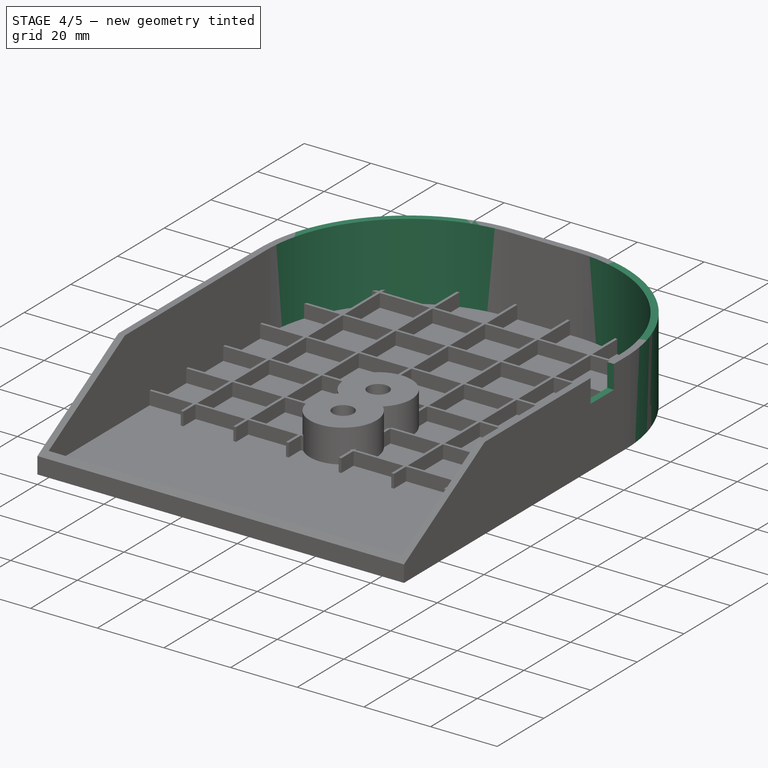
[diagram: stage 4 of 5 — iso view after this stage's code; geometry added in this stage tinted green]
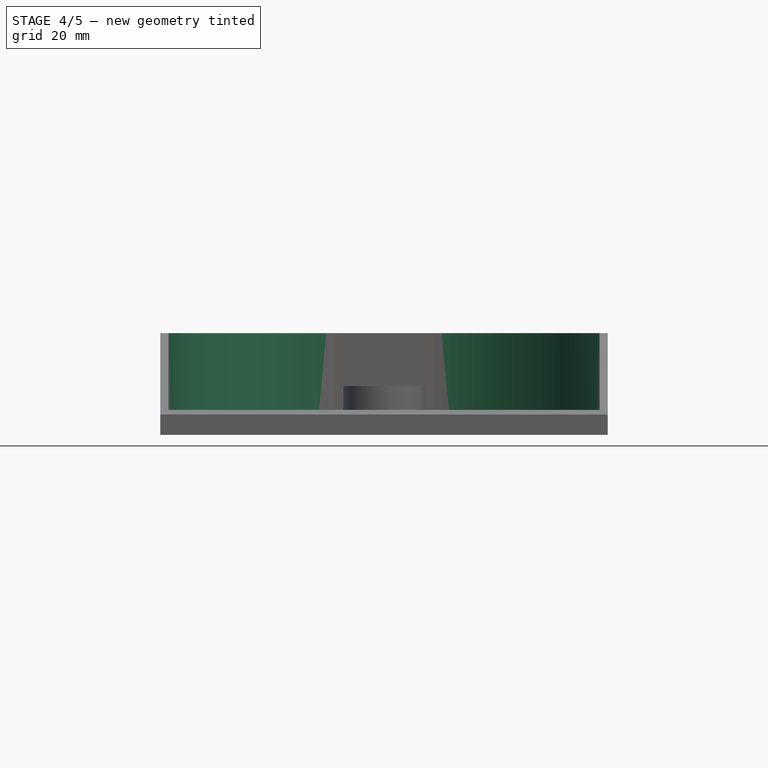
[diagram: stage 4 of 5 — front view after this stage's code; geometry added in this stage tinted green]
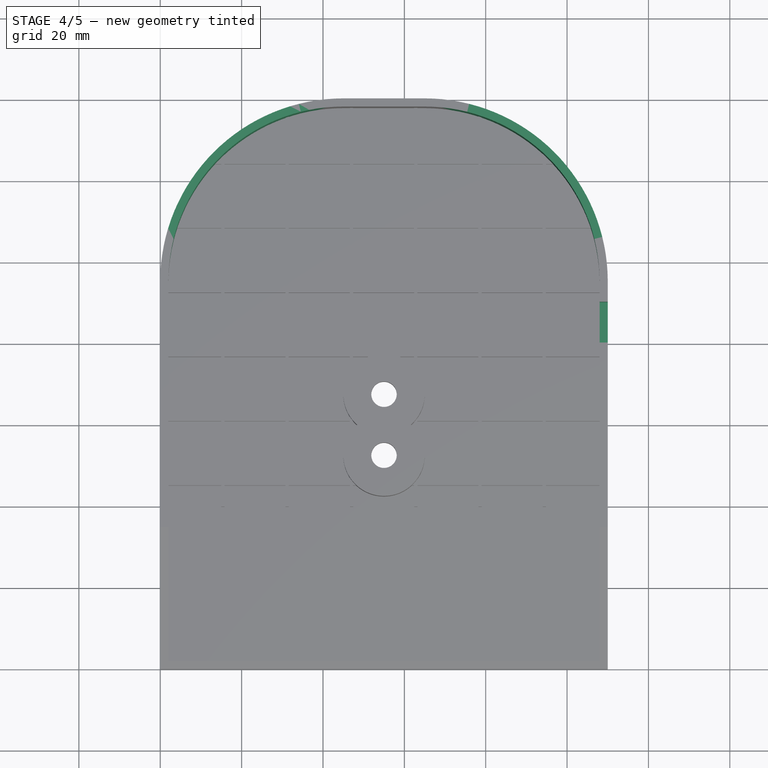
[diagram: stage 4 of 5 — top view after this stage's code; geometry added in this stage tinted green]
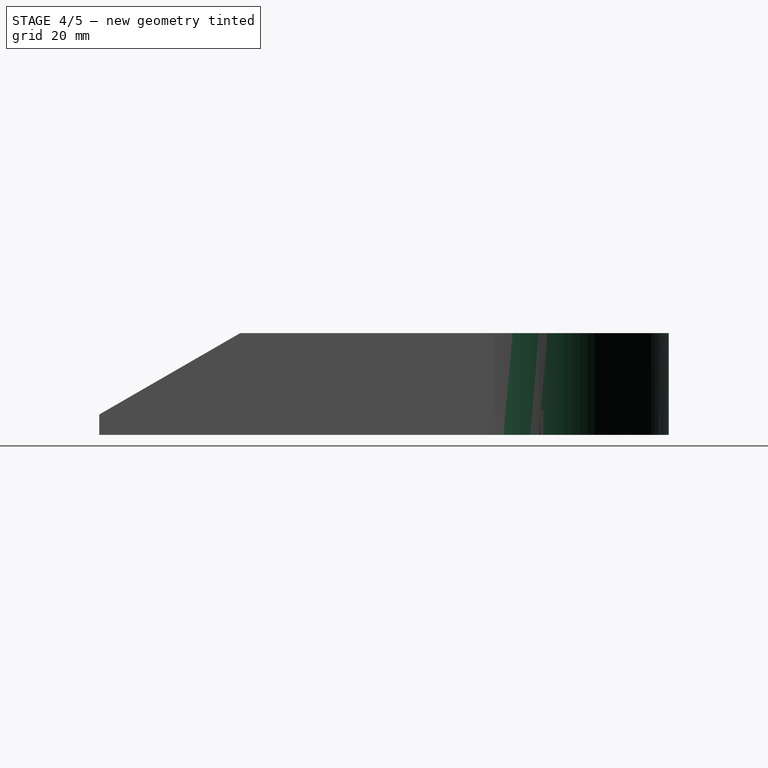
[diagram: stage 4 of 5 — right view after this stage's code; geometry added in this stage tinted green]
FEATURE [PartDesign::Plane] DatumPlane002
  Length = 146.6
  MapMode = 5
  Placement = pos=(0,-2.16506,3.75) rot=(1,0,0;0.523599rad)
  ResizeMode = 0
  Support = -> [Pad001]
  Width = 174.003
FEATURE [PartDesign::Fillet] Fillet001  label="base_fillet_inner"
  Base = -> Pocket001 [Edge35,Edge29]
  BaseFeature = -> Pocket001
  Radius = 43
  expr: Radius = Parameters.base_fillet_radius - Parameters.shell
FEATURE [PartDesign::Fillet] Fillet002  label="base_fillet_outer"
  Base = -> Fillet001 [Edge26,Edge29]
  BaseFeature = -> Fillet001
  Radius = 45
  expr: Radius = Parameters.base_fillet_radius
FEATURE [PartDesign::Plane] DatumPlane003
  Length = 164.491
  MapMode = 5
  Placement = pos=(110,0,0) rot=(0.57735,0.57735,0.57735;2.0944rad)
  ResizeMode = 0
  Support = -> [Fillet002]
  Width = 49.4914
FEATURE [Sketcher::SketchObject] Sketch005
  MapMode = 5
  Placement = pos=(110,0,0) rot=(0.57735,0.57735,0.57735;2.0944rad)
  Support = -> [DatumPlane003]
  expr: Constraints[9] = Parameters.lenZ - (Parameters.shell + Parameters.nano_usb_upto)
  expr: Constraints[10] = Parameters.shell + Parameters.nano_usb_upto
  expr: Constraints[11] = Parameters.lenY - Parameters.base_fillet_radius - (Parameters.nano_width + 2 - Parameters.nano_usb_width) / 2
  expr: Constraints[8] = Parameters.nano_usb_width
  sketch-geometry (4):
    g0: LineSegment StartX=80 StartY=25 StartZ=0 EndX=90 EndY=25 EndZ=0
    g1: LineSegment StartX=90 StartY=25 StartZ=0 EndX=90 EndY=18 EndZ=0
    g2: LineSegment StartX=90 StartY=18 StartZ=0 EndX=80 EndY=18 EndZ=0
    g3: LineSegment StartX=80 StartY=18 StartZ=0 EndX=80 EndY=25 EndZ=0
  constraints (12):
    c: Coincident(g0,g1)
    c: Coincident(g1,g2)
    c: Coincident(g2,g3)
    c: Coincident(g3,g0)
    c: Horizontal(g0)
    c: Horizontal(g2)
    c: Vertical(g1)
    c: Vertical(g3)
    c: DistanceX(g0,g0) = 10
    c: DistanceY(g3,g3) = 7
    c: DistanceY(g-1,g2) = 18
    c: DistanceX(g-1,g0) = 90
FEATURE [PartDesign::Pocket] Pocket003  label="usb_slot"
  BaseFeature = -> Fillet002
  Length = 5
  Length2 = 100
  Profile = -> Sketch005
  Type = 2
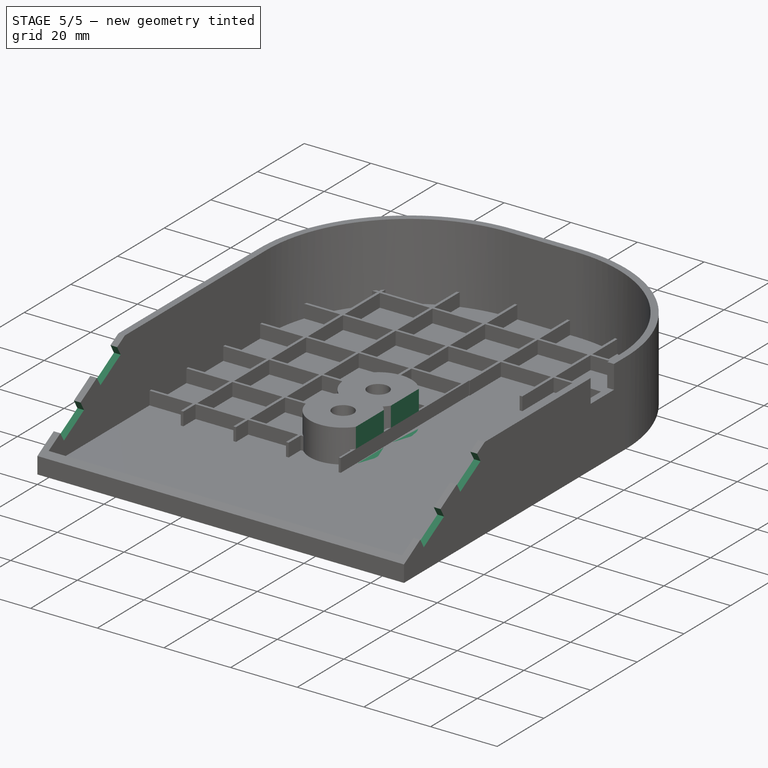
[diagram: stage 5 of 5 — iso view after this stage's code; geometry added in this stage tinted green]
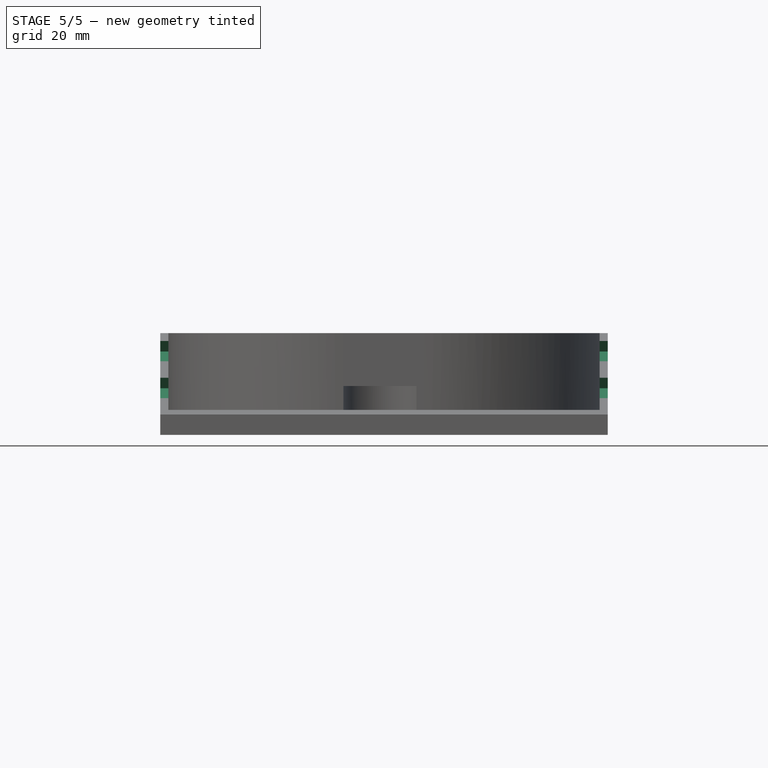
[diagram: stage 5 of 5 — front view after this stage's code; geometry added in this stage tinted green]
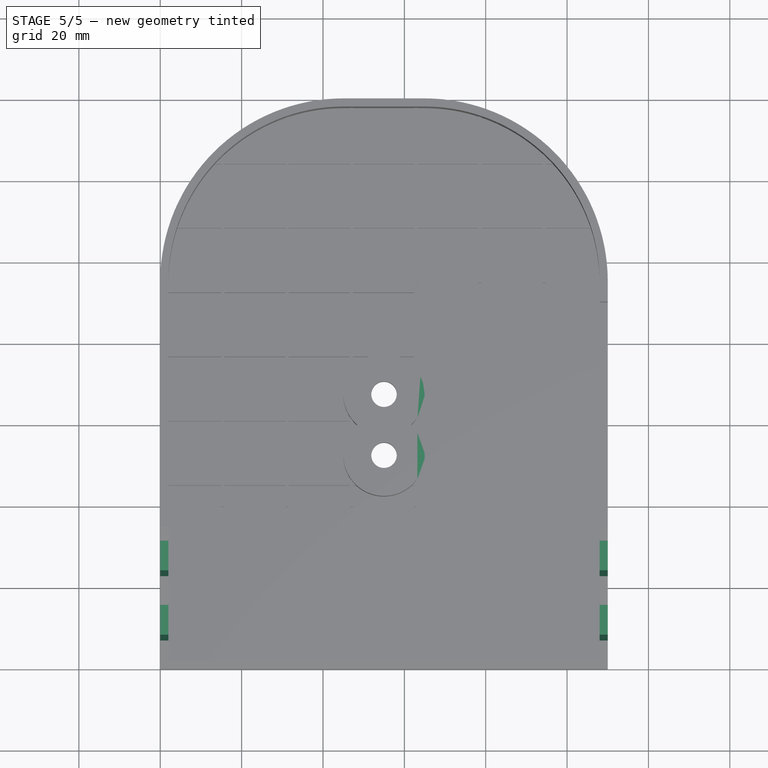
[diagram: stage 5 of 5 — top view after this stage's code; geometry added in this stage tinted green]
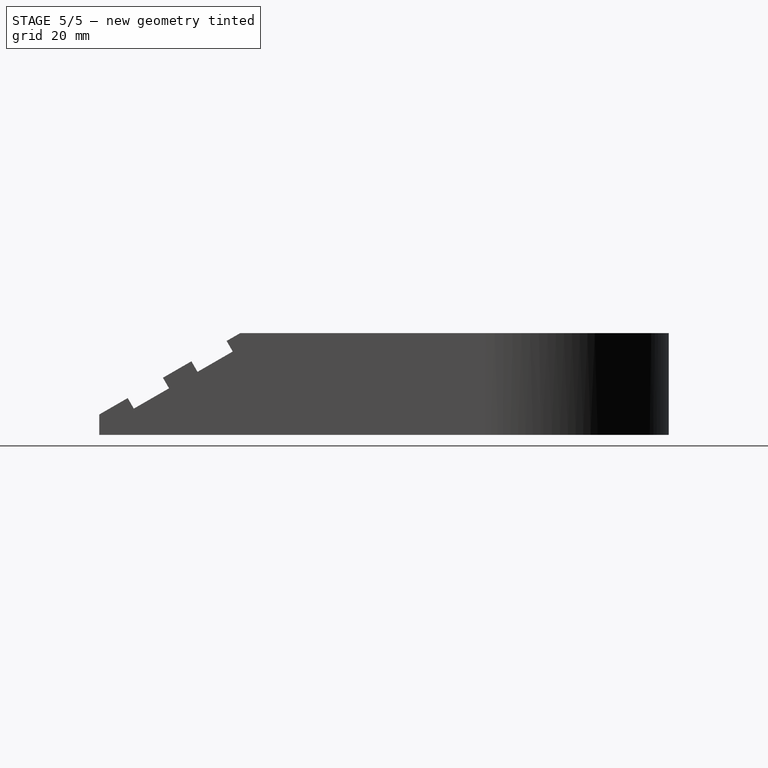
[diagram: stage 5 of 5 — right view after this stage's code; geometry added in this stage tinted green]
FEATURE [PartDesign::Body] Body001  label="Grid"
  Group = -> [Sketch007,Pad002,Boolean]
  Origin = -> Origin002
  Tip = -> Boolean
FEATURE [PartDesign::Boolean] Boolean001  label="Grid001"
  BaseFeature = -> Pocket003
  Group = -> [Body001]
  Type = 0
FEATURE [Sketcher::SketchObject] Sketch009
  MapMode = 5
  Placement = pos=(0,0,2) rot=(0,0,1;0rad)
  Support = -> [DatumPlane001]
  expr: Constraints[11] = Parameters.lenX - Parameters.shell
  expr: Constraints[10] = Parameters.lenY - Parameters.base_fillet_radius
  sketch-geometry (4):
    g0: LineSegment StartX=63 StartY=95 StartZ=0 EndX=108 EndY=95 EndZ=0
    g1: LineSegment StartX=108 StartY=95 StartZ=0 EndX=108 EndY=35 EndZ=0
    g2: LineSegment StartX=108 StartY=35 StartZ=0 EndX=63 EndY=35 EndZ=0
    g3: LineSegment StartX=63 StartY=35 StartZ=0 EndX=63 EndY=95 EndZ=0
  constraints (12):
    c: Coincident(g0,g1)
    c: Coincident(g1,g2)
    c: Coincident(g2,g3)
    c: Coincident(g3,g0)
    c: Horizontal(g0)
    c: Horizontal(g2)
    c: Vertical(g1)
    c: Vertical(g3)
    c: DistanceY(g1,g1) = 60
    c: DistanceX(g0,g0) = 45
    c: DistanceY(g-1,g0) = 95
    c: DistanceX(g-1,g1) = 108
FEATURE [PartDesign::Pocket] Pocket005  label="PCB Cutout"
  BaseFeature = -> Boolean001
  Length = 5
  Length2 = 100
  Profile = -> Sketch009
  Reversed = true
  Type = 1
FEATURE [Sketcher::SketchObject] Sketch010
  MapMode = 5
  Placement = pos=(0,0,0) rot=(0.57735,-0.57735,-0.57735;2.0944rad)
  Support = -> [Pocket005]
  expr: Constraints[21] = Parameters.screen_tab_spacing
  expr: Constraints[11] = 5 + Parameters.screen_tab_spacing * tan(Parameters.screen_angle)
  expr: Constraints[10] = Parameters.screen_tab_spacing
  expr: Constraints[22] = Parameters.screen_tab_spacing * tan(Parameters.screen_angle)
  expr: Constraints[9] = Parameters.screen_tab_height
  expr: Constraints[8] = Parameters.screen_tab_width
  expr: Constraints[7] = Parameters.screen_angle
  sketch-geometry (8):
    g0: LineSegment StartX=-15.6603 StartY=14.0415 StartZ=0 EndX=-17.1603 EndY=11.4434 EndZ=0
    g1: LineSegment StartX=-17.1603 StartY=11.4434 StartZ=0 EndX=-8.5 EndY=6.44338 EndZ=0
    g2: LineSegment StartX=-15.6603 StartY=14.0415 StartZ=0 EndX=-7 EndY=9.04145 EndZ=0
    g3: LineSegment StartX=-7 StartY=9.04145 StartZ=0 EndX=-8.5 EndY=6.44338 EndZ=0
    g4: LineSegment StartX=-31.3205 StartY=23.0829 StartZ=0 EndX=-32.8205 EndY=20.4848 EndZ=0
    g5: LineSegment StartX=-32.8205 StartY=20.4848 StartZ=0 EndX=-24.1603 EndY=15.4848 EndZ=0
    g6: LineSegment StartX=-31.3205 StartY=23.0829 StartZ=0 EndX=-22.6603 EndY=18.0829 EndZ=0
    g7: LineSegment StartX=-22.6603 StartY=18.0829 StartZ=0 EndX=-24.1603 EndY=15.4848 EndZ=0
  constraints (24):
    c: Coincident(g0,g1)
    c: Coincident(g0,g2)
    c: Coincident(g1,g3)
    c: Coincident(g2,g3)
    c: Perpendicular(g1,g0)
    c: Perpendicular(g2,g3)
    c: Perpendicular(g3,g1)
    c: Angle(g2,g-1) = 0.523599
    c: Distance(g1) = 10
    c: Distance(g3) = 3
    c: DistanceX(g2,g-1) = 7
    c: DistanceY(g-1,g2) = 9.04145
    c: Coincident(g4,g5)
    c: Coincident(g4,g6)
    c: Coincident(g5,g7)
    c: Coincident(g6,g7)
    c: Perpendicular(g5,g4)
    c: Perpendicular(g6,g7)
    c: Perpendicular(g7,g5)
    c: Equal(g1,g5) = 10
    c: Equal(g3,g7) = 3
    c: DistanceX(g6,g0) = 7
    c: DistanceY(g0,g6) = 4.04145
    c: Parallel(g6,g2)
FEATURE [PartDesign::Pocket] Pocket006  label="Screen Tab Cutout"
  BaseFeature = -> Pocket005
  Length = 5
  Length2 = 100
  Profile = -> Sketch010
  Type = 1
FEATURE [PartDesign::Body] Body
  BaseFeature = -> Pad
  Group = -> [BaseFeature,Sketch001,Pocket,Thickness,DatumPlane001,Sketch002,Pad001,Sketch003,Pocket001,DatumPlane002,Fillet001,Fillet002,DatumPlane003,Sketch005,Pocket003,DatumPlane004,Boolean001,Sketch009,Pocket005,Sketch010,Pocket006]
  Origin = -> Origin001
  Tip = -> Pocket006
FEATURE [App::Part] Part  label="Base"
  Group = -> [DatumPlane,Sketch,Pad,Body]
  Origin = -> Origin
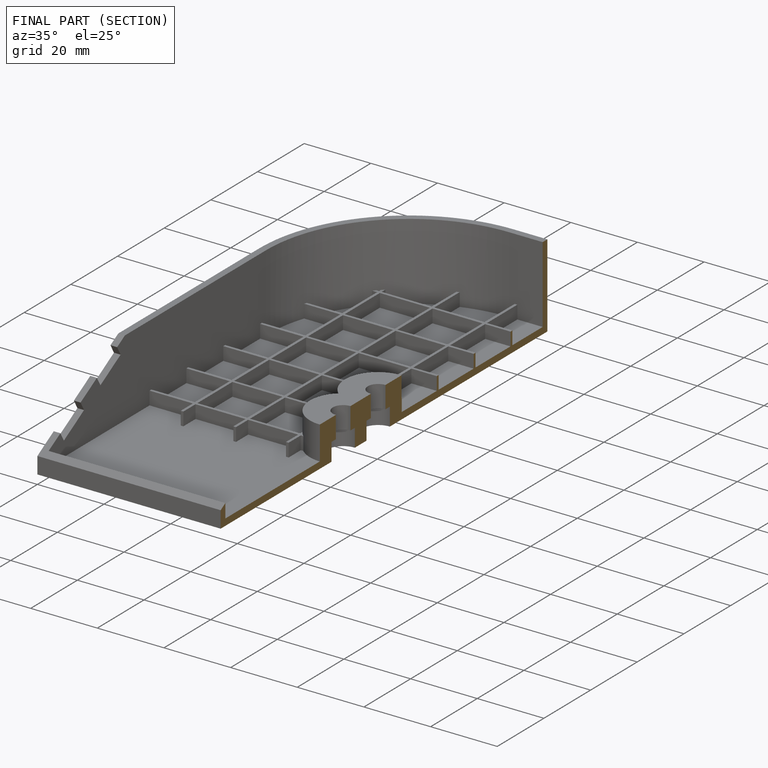
[diagram: finished part — half-section view (interior)]
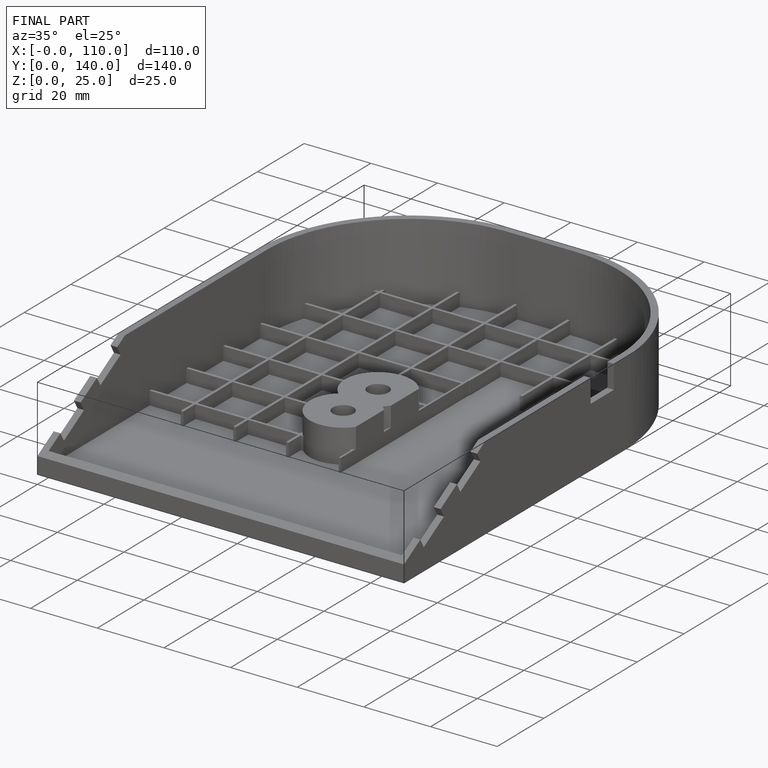
[diagram: finished part — iso view with bounding-box wireframe]
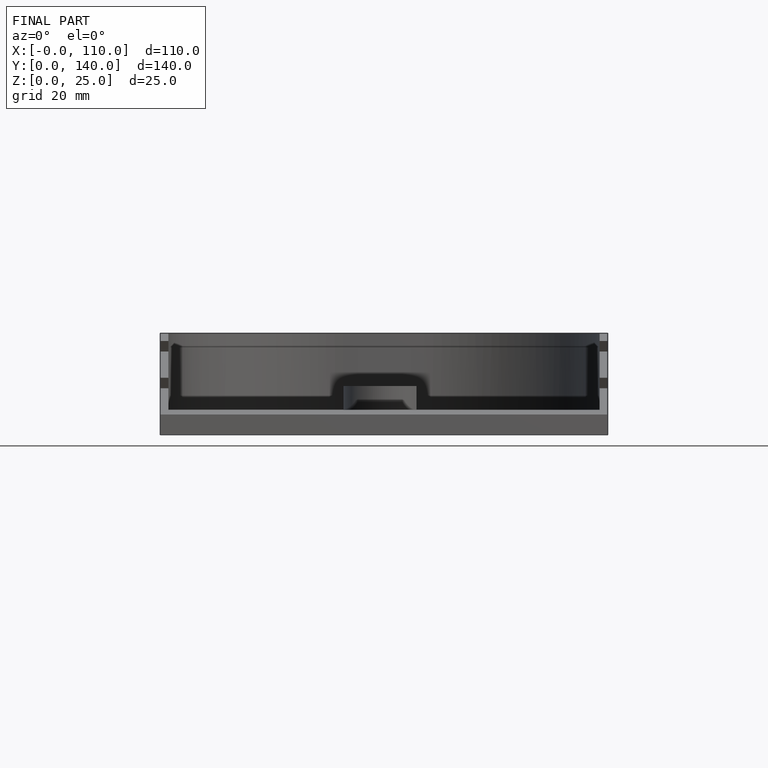
[diagram: finished part — front view with bounding-box wireframe]
